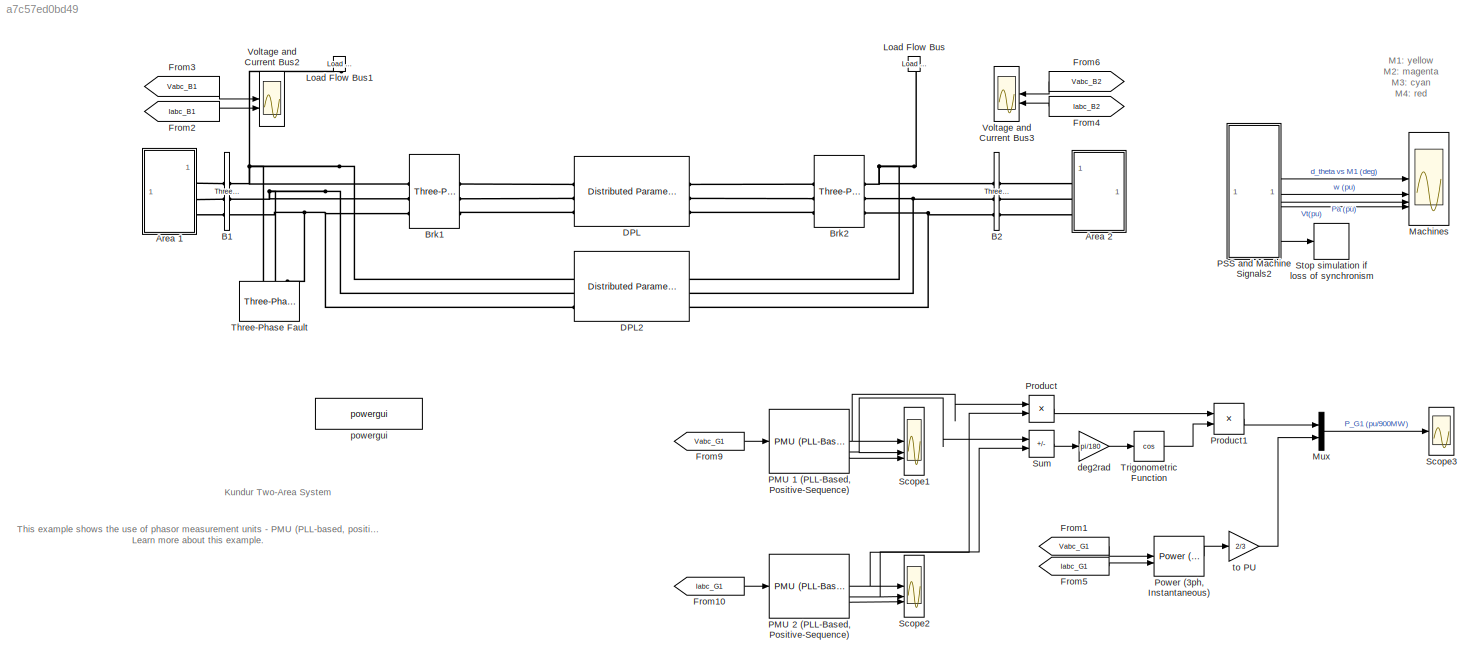
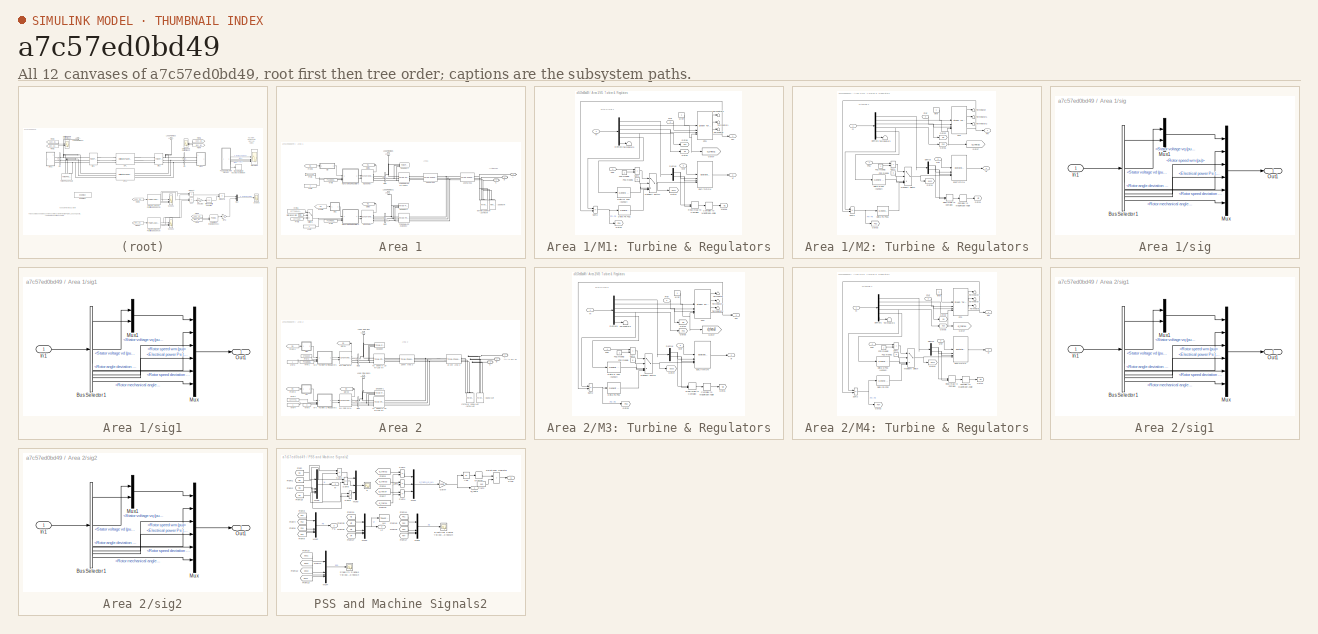
[diagram: thumbnail index - all 12 canvases of the model, root first then tree order]
MODEL slx_a7c57ed0bd49
KIND model
CONFIG AbsTol = auto
CONFIG EnableMultiTasking = off
CONFIG FixedStep = auto
CONFIG MaxStep = 1/60
CONFIG MinStep = auto
CONFIG PreLoadFcn = Ts=50e-6;\nTctrl=2*Ts;\nPSSMODEL=1;\n
CONFIG RelTol = 1e-4
CONFIG SampleTimeConstraint = Unconstrained
CONFIG SolverName = FixedStepDiscrete
CONFIG StartTime = 0.0
CONFIG StopTime = 25
BLOCK [Reference]  Brk2  REF=spsThreePhaseBreakerLib/Three-Phase Breaker
  AttributesFormatString = \n
  LibrarySourceBlock = sps_lib/Power Grid Elements/Three-Phase Breaker
  SourceBlock = spsThreePhaseBreakerLib/Three-Phase Breaker
  SourceType = Three-Phase Breaker
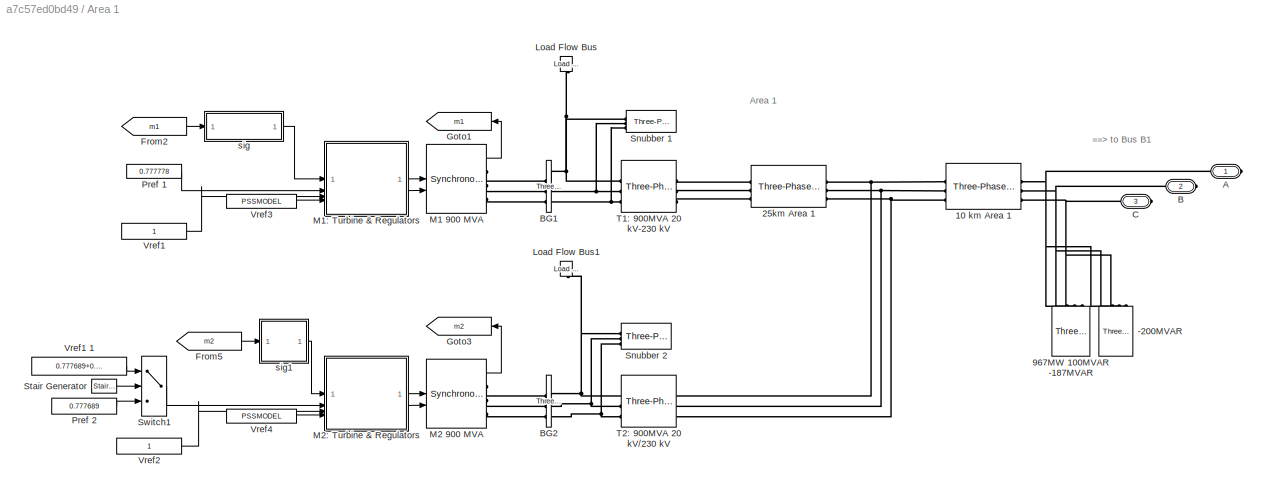
BLOCK [SubSystem] Area 1
BLOCK [PMIOPort] Area 1/ A
  Side = Right
BLOCK [PMIOPort] Area 1/ B
  Port = 2
  Side = Right
BLOCK [PMIOPort] Area 1/ C
  Port = 3
  Side = Right
BLOCK [Reference] Area 1/-200MVAR  REF=spsThreePhaseParallelRLCLoadLib/Three-Phase
Parallel RLC Load
  AttributesFormatString = \n
  LibrarySourceBlock = sps_lib/Passives/Three-Phase\nParallel RLC Load
  NameLocation = right
  SourceBlock = spsThreePhaseParallelRLCLoadLib/Three-Phase\nParallel RLC Load
  SourceType = Three-Phase Parallel RLC Load
BLOCK [Reference] Area 1/10 km Area 1  REF=spsThreePhasePISectionLineLib/Three-Phase
PI Section Line
  AttributesFormatString = \n
  LibrarySourceBlock = sps_lib/Power Grid Elements/Three-Phase\nPI Section Line
  SourceBlock = spsThreePhasePISectionLineLib/Three-Phase\nPI Section Line
  SourceType = Three-Phase PI Section Line
BLOCK [Reference] Area 1/25km Area 1  REF=spsThreePhasePISectionLineLib/Three-Phase
PI Section Line
  AttributesFormatString = \n
  LibrarySourceBlock = sps_lib/Power Grid Elements/Three-Phase\nPI Section Line
  SourceBlock = spsThreePhasePISectionLineLib/Three-Phase\nPI Section Line
  SourceType = Three-Phase PI Section Line
BLOCK [Reference] Area 1/967MW 100MVAR -187MVAR  REF=spsThreePhaseParallelRLCLoadLib/Three-Phase
Parallel RLC Load
  AttributesFormatString = \n
  LibrarySourceBlock = sps_lib/Passives/Three-Phase\nParallel RLC Load
  NameLocation = left
  SourceBlock = spsThreePhaseParallelRLCLoadLib/Three-Phase\nParallel RLC Load
  SourceType = Three-Phase Parallel RLC Load
BLOCK [Reference] Area 1/BG1  REF=spsThreePhaseVIMeasurementLib/Three-Phase
V-I Measurement
  LibrarySourceBlock = sps_lib/Sensors and Measurements/Three-Phase\nV-I Measurement
  SourceBlock = spsThreePhaseVIMeasurementLib/Three-Phase\nV-I Measurement
  SourceType = Three-Phase VI Measurement
BLOCK [Reference] Area 1/BG2  REF=spsThreePhaseVIMeasurementLib/Three-Phase
V-I Measurement
  LibrarySourceBlock = sps_lib/Sensors and Measurements/Three-Phase\nV-I Measurement
  SourceBlock = spsThreePhaseVIMeasurementLib/Three-Phase\nV-I Measurement
  SourceType = Three-Phase VI Measurement
BLOCK [From] Area 1/From2
  CloseFcn = tagdialog Close
  GotoTag = m1
BLOCK [From] Area 1/From5
  CloseFcn = tagdialog Close
  GotoTag = m2
BLOCK [Goto] Area 1/Goto1
  GotoTag = m1
  NameLocation = top
BLOCK [Goto] Area 1/Goto3
  GotoTag = m2
  NameLocation = top
BLOCK [Reference] Area 1/Load Flow Bus  REF=spsLoadFlowBusLib/Load Flow Bus
  AttributesFormatString = %<ID>\n%<Vbase>V\n%<VLF>pu\n%<angleLF>deg.
  LibrarySourceBlock = sps_lib/Utilities/Load Flow Bus
  NameLocation = right
  SourceBlock = spsLoadFlowBusLib/Load Flow Bus
  SourceType = Load Flow Bus
BLOCK [Reference] Area 1/Load Flow Bus1  REF=spsLoadFlowBusLib/Load Flow Bus
  AttributesFormatString = %<ID>\n%<Vbase>V\n%<VLF>pu\n%<angleLF>deg.
  LibrarySourceBlock = sps_lib/Utilities/Load Flow Bus
  NameLocation = right
  SourceBlock = spsLoadFlowBusLib/Load Flow Bus
  SourceType = Load Flow Bus
BLOCK [Reference] Area 1/M1 900 MVA  REF=spsSynchronousMachinepuStandardLib/Synchronous Machine
pu Standard
  AttributesFormatString = \n\n
  LibrarySourceBlock = sps_lib/Electrical Machines/Synchronous Machine\npu Standard
  SourceBlock = spsSynchronousMachinepuStandardLib/Synchronous Machine\npu Standard
  SourceType = Synchronous Machine
BLOCK [SubSystem] Area 1/M1: Turbine & Regulators
BLOCK [ComplexToMagnitudeAngle] Area 1/M1: Turbine & Regulators/Complex to Magnitude-Angle
  Output = Magnitude
BLOCK [Reference] Area 1/M1: Turbine & Regulators/Delta Pa PSS  REF=spsGenericPowerSystemStabilizerLib/Generic
Power System Stabilizer
  LibrarySourceBlock = sps_lib/Electrical Machines/Synchronous Machine Control/Generic\nPower System Stabilizer
  SourceBlock = spsGenericPowerSystemStabilizerLib/Generic\nPower System Stabilizer
  SourceType = Generic Power System Stabilizer
BLOCK [Reference] Area 1/M1: Turbine & Regulators/Delta w PSS (Kundur)  REF=spsGenericPowerSystemStabilizerLib/Generic
Power System Stabilizer
  LibrarySourceBlock = sps_lib/Electrical Machines/Synchronous Machine Control/Generic\nPower System Stabilizer
  SourceBlock = spsGenericPowerSystemStabilizerLib/Generic\nPower System Stabilizer
  SourceType = Generic Power System Stabilizer
BLOCK [Demux] Area 1/M1: Turbine & Regulators/Demux
  DisplayOption = none
  Outputs = 2
BLOCK [Demux] Area 1/M1: Turbine & Regulators/Demux1
  Outputs = [2 1 1 1 1 1]
BLOCK [Reference] Area 1/M1: Turbine & Regulators/EXCITATION  REF=spsExcitationSystemLib/Excitation System
  LibrarySourceBlock = sps_lib/Electrical Machines/Synchronous Machine Control/Excitation System
  SourceBlock = spsExcitationSystemLib/Excitation System
  SourceType = Excitation System
BLOCK [Goto] Area 1/M1: Turbine & Regulators/Goto1
  GotoTag = Vt1
  TagVisibility = global
BLOCK [Goto] Area 1/M1: Turbine & Regulators/Goto2
  GotoTag = w1
  TagVisibility = global
BLOCK [Goto] Area 1/M1: Turbine & Regulators/Goto3
  GotoTag = Pa1
  TagVisibility = global
BLOCK [Goto] Area 1/M1: Turbine & Regulators/Goto4
  GotoTag = pss1
  TagVisibility = global
BLOCK [Goto] Area 1/M1: Turbine & Regulators/Goto6
  GotoTag = Pe1
  TagVisibility = global
BLOCK [Goto] Area 1/M1: Turbine & Regulators/Goto7
  GotoTag = d_theta1
  TagVisibility = global
BLOCK [MultiPortSwitch] Area 1/M1: Turbine & Regulators/Multiport Switch
  Inputs = 4
  SaturateOnIntegerOverflow = off
BLOCK [Inport] Area 1/M1: Turbine & Regulators/PSS
  Port = 4
BLOCK [Constant] Area 1/M1: Turbine & Regulators/PSS model1
  Value = 0
BLOCK [Constant] Area 1/M1: Turbine & Regulators/PSS model2
BLOCK [Outport] Area 1/M1: Turbine & Regulators/Pm
  InitialOutput = 0
  VectorParamsAs1DForOutWhenUnconnected = off
BLOCK [Inport] Area 1/M1: Turbine & Regulators/Pref
  Port = 2
BLOCK [RealImagToComplex] Area 1/M1: Turbine & Regulators/Real-Imag to Complex
BLOCK [Reference] Area 1/M1: Turbine & Regulators/STG  REF=spsSteamTurbineandGovernorLib/Steam Turbine
and Governor
  LibrarySourceBlock = sps_lib/Electrical Machines/Synchronous Machine Control/Steam Turbine\nand Governor
  SourceBlock = spsSteamTurbineandGovernorLib/Steam Turbine\nand Governor
  SourceType = Steam Turbine and Governor
BLOCK [Sum] Area 1/M1: Turbine & Regulators/Sum1
  IconShape = rectangular
  InputSameDT = on
  OutDataTypeStr = Inherit: Same as first input
  SaturateOnIntegerOverflow = on
BLOCK [Sum] Area 1/M1: Turbine & Regulators/Sum2
  IconShape = rectangular
  InputSameDT = on
  Inputs = -+
  OutDataTypeStr = Inherit: Same as first input
  SaturateOnIntegerOverflow = on
BLOCK [Terminator] Area 1/M1: Turbine & Regulators/Terminator
BLOCK [Terminator] Area 1/M1: Turbine & Regulators/Terminator1
BLOCK [Terminator] Area 1/M1: Turbine & Regulators/Terminator2
BLOCK [Terminator] Area 1/M1: Turbine & Regulators/Terminator3
BLOCK [Outport] Area 1/M1: Turbine & Regulators/Vf
  InitialOutput = 0
  Port = 2
  VectorParamsAs1DForOutWhenUnconnected = off
BLOCK [Inport] Area 1/M1: Turbine & Regulators/Vref
  Port = 3
BLOCK [Inport] Area 1/M1: Turbine & Regulators/m
BLOCK [Constant] Area 1/M1: Turbine & Regulators/wref
  NameLocation = top
BLOCK [Reference] Area 1/M2 900 MVA  REF=spsSynchronousMachinepuStandardLib/Synchronous Machine
pu Standard
  AttributesFormatString = \n\n
  LibrarySourceBlock = sps_lib/Electrical Machines/Synchronous Machine\npu Standard
  SourceBlock = spsSynchronousMachinepuStandardLib/Synchronous Machine\npu Standard
  SourceType = Synchronous Machine
BLOCK [SubSystem] Area 1/M2: Turbine & Regulators
BLOCK [ComplexToMagnitudeAngle] Area 1/M2: Turbine & Regulators/Complex to Magnitude-Angle
  Output = Magnitude
BLOCK [Reference] Area 1/M2: Turbine & Regulators/Delta Pa PSS1  REF=spsGenericPowerSystemStabilizerLib/Generic
Power System Stabilizer
  LibrarySourceBlock = sps_lib/Electrical Machines/Synchronous Machine Control/Generic\nPower System Stabilizer
  SourceBlock = spsGenericPowerSystemStabilizerLib/Generic\nPower System Stabilizer
  SourceType = Generic Power System Stabilizer
BLOCK [Reference] Area 1/M2: Turbine & Regulators/Delta w PSS (Kundur)  REF=spsGenericPowerSystemStabilizerLib/Generic
Power System Stabilizer
  LibrarySourceBlock = sps_lib/Electrical Machines/Synchronous Machine Control/Generic\nPower System Stabilizer
  SourceBlock = spsGenericPowerSystemStabilizerLib/Generic\nPower System Stabilizer
  SourceType = Generic Power System Stabilizer
BLOCK [Demux] Area 1/M2: Turbine & Regulators/Demux
  DisplayOption = none
  Outputs = 2
BLOCK [Demux] Area 1/M2: Turbine & Regulators/Demux1
  Outputs = [2 1 1 1 1 1]
BLOCK [Reference] Area 1/M2: Turbine & Regulators/EXCITATION  REF=spsExcitationSystemLib/Excitation System
  LibrarySourceBlock = sps_lib/Electrical Machines/Synchronous Machine Control/Excitation System
  SourceBlock = spsExcitationSystemLib/Excitation System
  SourceType = Excitation System
BLOCK [Goto] Area 1/M2: Turbine & Regulators/Goto1
  GotoTag = Vt2
  TagVisibility = global
BLOCK [Goto] Area 1/M2: Turbine & Regulators/Goto2
  GotoTag = w2
  TagVisibility = global
BLOCK [Goto] Area 1/M2: Turbine & Regulators/Goto3
  GotoTag = Pa2
  TagVisibility = global
BLOCK [Goto] Area 1/M2: Turbine & Regulators/Goto4
  GotoTag = pss2
  TagVisibility = global
BLOCK [Goto] Area 1/M2: Turbine & Regulators/Goto6
  GotoTag = Pe2
  TagVisibility = global
BLOCK [Goto] Area 1/M2: Turbine & Regulators/Goto7
  GotoTag = d_theta2
  TagVisibility = global
BLOCK [MultiPortSwitch] Area 1/M2: Turbine & Regulators/Multiport Switch
  Inputs = 4
  SaturateOnIntegerOverflow = off
BLOCK [Inport] Area 1/M2: Turbine & Regulators/PSS
  Port = 4
BLOCK [Constant] Area 1/M2: Turbine & Regulators/PSS model1
  Value = 0
BLOCK [Constant] Area 1/M2: Turbine & Regulators/PSS model2
BLOCK [Outport] Area 1/M2: Turbine & Regulators/Pm
  InitialOutput = 0
  VectorParamsAs1DForOutWhenUnconnected = off
BLOCK [Inport] Area 1/M2: Turbine & Regulators/Pref
  Port = 2
BLOCK [RealImagToComplex] Area 1/M2: Turbine & Regulators/Real-Imag to Complex
BLOCK [Reference] Area 1/M2: Turbine & Regulators/STG  REF=spsSteamTurbineandGovernorLib/Steam Turbine
and Governor
  LibrarySourceBlock = sps_lib/Electrical Machines/Synchronous Machine Control/Steam Turbine\nand Governor
  SourceBlock = spsSteamTurbineandGovernorLib/Steam Turbine\nand Governor
  SourceType = Steam Turbine and Governor
BLOCK [Sum] Area 1/M2: Turbine & Regulators/Sum1
  IconShape = rectangular
  InputSameDT = on
  OutDataTypeStr = Inherit: Same as first input
  SaturateOnIntegerOverflow = on
BLOCK [Sum] Area 1/M2: Turbine & Regulators/Sum2
  IconShape = rectangular
  InputSameDT = on
  Inputs = -+
  OutDataTypeStr = Inherit: Same as first input
  SaturateOnIntegerOverflow = on
BLOCK [Terminator] Area 1/M2: Turbine & Regulators/Terminator
BLOCK [Terminator] Area 1/M2: Turbine & Regulators/Terminator1
BLOCK [Terminator] Area 1/M2: Turbine & Regulators/Terminator2
BLOCK [Terminator] Area 1/M2: Turbine & Regulators/Terminator3
BLOCK [Outport] Area 1/M2: Turbine & Regulators/Vf
  InitialOutput = 0
  Port = 2
  VectorParamsAs1DForOutWhenUnconnected = off
BLOCK [Inport] Area 1/M2: Turbine & Regulators/Vref
  Port = 3
BLOCK [Inport] Area 1/M2: Turbine & Regulators/m
BLOCK [Constant] Area 1/M2: Turbine & Regulators/wref
  NameLocation = top
BLOCK [Constant] Area 1/Pref 1
  Value = 0.777778
BLOCK [Constant] Area 1/Pref 2
  Value = 0.777689
BLOCK [Reference] Area 1/Snubber 1  REF=spsThreePhaseSeriesRLCLoadLib/Three-Phase
Series RLC Load
  AttributesFormatString = \n
  LibrarySourceBlock = sps_lib/Passives/Three-Phase\nSeries RLC Load
  SourceBlock = spsThreePhaseSeriesRLCLoadLib/Three-Phase\nSeries RLC Load
  SourceType = Three-Phase Series RLC Load
BLOCK [Reference] Area 1/Snubber 2  REF=spsThreePhaseSeriesRLCLoadLib/Three-Phase
Series RLC Load
  AttributesFormatString = \n
  LibrarySourceBlock = sps_lib/Passives/Three-Phase\nSeries RLC Load
  SourceBlock = spsThreePhaseSeriesRLCLoadLib/Three-Phase\nSeries RLC Load
  SourceType = Three-Phase Series RLC Load
BLOCK [Reference] Area 1/Stair Generator  REF=spsStairGeneratorLib/Stair
Generator
  LibrarySourceBlock = sps_lib/Sources/Signal Generator Sources/Stair\nGenerator
  NameLocation = top
  SourceBlock = spsStairGeneratorLib/Stair\nGenerator
  SourceType = Stair Generator
BLOCK [Switch] Area 1/Switch1
  SaturateOnIntegerOverflow = off
  Threshold = 1
BLOCK [Reference] Area 1/T1: 900MVA 20 kV-230 kV  REF=spsThreePhaseTransformerTwoWindingsLib/Three-Phase
Transformer
(Two Windings)
  AttributesFormatString = \n
  LibrarySourceBlock = sps_lib/Power Grid Elements/Three-Phase\nTransformer\n(Two Windings)
  SourceBlock = spsThreePhaseTransformerTwoWindingsLib/Three-Phase\nTransformer\n(Two Windings)
  SourceType = Three-Phase Transformer (Two Windings)
BLOCK [Reference] Area 1/T2: 900MVA 20 kV//230 kV  REF=spsThreePhaseTransformerTwoWindingsLib/Three-Phase
Transformer
(Two Windings)
  AttributesFormatString = \n
  LibrarySourceBlock = sps_lib/Power Grid Elements/Three-Phase\nTransformer\n(Two Windings)
  SourceBlock = spsThreePhaseTransformerTwoWindingsLib/Three-Phase\nTransformer\n(Two Windings)
  SourceType = Three-Phase Transformer (Two Windings)
BLOCK [Constant] Area 1/Vref1
BLOCK [Constant] Area 1/Vref1 1
  Value = 0.777689+0.05
BLOCK [Constant] Area 1/Vref2
BLOCK [Constant] Area 1/Vref3
  Value = PSSMODEL
BLOCK [Constant] Area 1/Vref4
  Value = PSSMODEL
BLOCK [SubSystem] Area 1/sig
  NameLocation = top
BLOCK [BusSelector] Area 1/sig/Bus Selector1
  OutputSignals = dq0 components.Stator voltage  vq (pu),dq0 components.Stator voltage  vd (pu),Mechanical.Rotor angle deviation  d_theta (rad),Mechanical.Rotor speed  wm  (pu),Mechanical.Electrical power  Pe (pu),Mechanical.Rotor speed deviation  dw (pu),Mechanical.Rotor mechanical angle  theta (deg)  <repeated x4 — deduplicated; at blocks: Bus Selector1>
BLOCK [Inport] Area 1/sig/In1
BLOCK [Mux] Area 1/sig/Mux
  DisplayOption = bar
  Inputs = 6
BLOCK [Mux] Area 1/sig/Mux1
  DisplayOption = bar
  Inputs = 2
BLOCK [Outport] Area 1/sig/Out1
  VectorParamsAs1DForOutWhenUnconnected = off
BLOCK [SubSystem] Area 1/sig1
  NameLocation = top
BLOCK [BusSelector] Area 1/sig1/Bus Selector1
BLOCK [Inport] Area 1/sig1/In1
BLOCK [Mux] Area 1/sig1/Mux
  DisplayOption = bar
  Inputs = 6
BLOCK [Mux] Area 1/sig1/Mux1
  DisplayOption = bar
  Inputs = 2
BLOCK [Outport] Area 1/sig1/Out1
  VectorParamsAs1DForOutWhenUnconnected = off
BLOCK [SubSystem] Area 2
BLOCK [Reference] Area 2/-350MVAR  REF=spsThreePhaseParallelRLCLoadLib/Three-Phase
Parallel RLC Load
  AttributesFormatString = \n
  LibrarySourceBlock = sps_lib/Passives/Three-Phase\nParallel RLC Load
  NameLocation = right
  SourceBlock = spsThreePhaseParallelRLCLoadLib/Three-Phase\nParallel RLC Load
  SourceType = Three-Phase Parallel RLC Load
BLOCK [Reference] Area 2/10 km Area 2  REF=spsThreePhasePISectionLineLib/Three-Phase
PI Section Line
  AttributesFormatString = \n
  LibrarySourceBlock = sps_lib/Power Grid Elements/Three-Phase\nPI Section Line
  SourceBlock = spsThreePhasePISectionLineLib/Three-Phase\nPI Section Line
  SourceType = Three-Phase PI Section Line
BLOCK [Reference] Area 2/1767MW 100MVAR -187MVAR  REF=spsThreePhaseParallelRLCLoadLib/Three-Phase
Parallel RLC Load
  AttributesFormatString = \n
  LibrarySourceBlock = sps_lib/Passives/Three-Phase\nParallel RLC Load
  NameLocation = left
  SourceBlock = spsThreePhaseParallelRLCLoadLib/Three-Phase\nParallel RLC Load
  SourceType = Three-Phase Parallel RLC Load
BLOCK [Reference] Area 2/25km Area 2  REF=spsThreePhasePISectionLineLib/Three-Phase
PI Section Line
  AttributesFormatString = \n
  LibrarySourceBlock = sps_lib/Power Grid Elements/Three-Phase\nPI Section Line
  SourceBlock = spsThreePhasePISectionLineLib/Three-Phase\nPI Section Line
  SourceType = Three-Phase PI Section Line
BLOCK [PMIOPort] Area 2/A
  Side = Left
BLOCK [PMIOPort] Area 2/B
  Port = 2
  Side = Left
BLOCK [Reference] Area 2/BG3  REF=spsThreePhaseVIMeasurementLib/Three-Phase
V-I Measurement
  LibrarySourceBlock = sps_lib/Sensors and Measurements/Three-Phase\nV-I Measurement
  SourceBlock = spsThreePhaseVIMeasurementLib/Three-Phase\nV-I Measurement
  SourceType = Three-Phase VI Measurement
BLOCK [Reference] Area 2/BG4  REF=spsThreePhaseVIMeasurementLib/Three-Phase
V-I Measurement
  LibrarySourceBlock = sps_lib/Sensors and Measurements/Three-Phase\nV-I Measurement
  SourceBlock = spsThreePhaseVIMeasurementLib/Three-Phase\nV-I Measurement
  SourceType = Three-Phase VI Measurement
BLOCK [PMIOPort] Area 2/C
  Port = 3
  Side = Left
BLOCK [From] Area 2/From3
  CloseFcn = tagdialog Close
  GotoTag = m4
BLOCK [From] Area 2/From4
  CloseFcn = tagdialog Close
  GotoTag = m3
BLOCK [Goto] Area 2/Goto1
  GotoTag = m3
  NameLocation = top
BLOCK [Goto] Area 2/Goto3
  GotoTag = m4
  NameLocation = top
BLOCK [Reference] Area 2/Load Flow Bus  REF=spsLoadFlowBusLib/Load Flow Bus
  AttributesFormatString = %<ID>\n%<Vbase>V\n%<VLF>pu\n%<angleLF>deg.
  LibrarySourceBlock = sps_lib/Utilities/Load Flow Bus
  NameLocation = right
  SourceBlock = spsLoadFlowBusLib/Load Flow Bus
  SourceType = Load Flow Bus
BLOCK [Reference] Area 2/Load Flow Bus1  REF=spsLoadFlowBusLib/Load Flow Bus
  AttributesFormatString = %<ID>\n%<Vbase>V\n%<VLF>pu\n%<angleLF>deg.
  LibrarySourceBlock = sps_lib/Utilities/Load Flow Bus
  NameLocation = right
  SourceBlock = spsLoadFlowBusLib/Load Flow Bus
  SourceType = Load Flow Bus
BLOCK [Reference] Area 2/M3 900 MVA  REF=spsSynchronousMachinepuStandardLib/Synchronous Machine
pu Standard
  AttributesFormatString = \n\n
  LibrarySourceBlock = sps_lib/Electrical Machines/Synchronous Machine\npu Standard
  SourceBlock = spsSynchronousMachinepuStandardLib/Synchronous Machine\npu Standard
  SourceType = Synchronous Machine
BLOCK [SubSystem] Area 2/M3: Turbine & Regulators
BLOCK [ComplexToMagnitudeAngle] Area 2/M3: Turbine & Regulators/Complex to Magnitude-Angle
  Output = Magnitude
BLOCK [Reference] Area 2/M3: Turbine & Regulators/Delta Pa PSS  REF=spsGenericPowerSystemStabilizerLib/Generic
Power System Stabilizer
  LibrarySourceBlock = sps_lib/Electrical Machines/Synchronous Machine Control/Generic\nPower System Stabilizer
  SourceBlock = spsGenericPowerSystemStabilizerLib/Generic\nPower System Stabilizer
  SourceType = Generic Power System Stabilizer
BLOCK [Reference] Area 2/M3: Turbine & Regulators/Delta w PSS (Kundur)  REF=spsGenericPowerSystemStabilizerLib/Generic
Power System Stabilizer
  LibrarySourceBlock = sps_lib/Electrical Machines/Synchronous Machine Control/Generic\nPower System Stabilizer
  SourceBlock = spsGenericPowerSystemStabilizerLib/Generic\nPower System Stabilizer
  SourceType = Generic Power System Stabilizer
BLOCK [Demux] Area 2/M3: Turbine & Regulators/Demux
  DisplayOption = none
  Outputs = 2
BLOCK [Demux] Area 2/M3: Turbine & Regulators/Demux1
  Outputs = [2 1 1 1 1 1]
BLOCK [Reference] Area 2/M3: Turbine & Regulators/EXCITATION  REF=spsExcitationSystemLib/Excitation System
  LibrarySourceBlock = sps_lib/Electrical Machines/Synchronous Machine Control/Excitation System
  SourceBlock = spsExcitationSystemLib/Excitation System
  SourceType = Excitation System
BLOCK [Goto] Area 2/M3: Turbine & Regulators/Goto1
  GotoTag = Vt3
  TagVisibility = global
BLOCK [Goto] Area 2/M3: Turbine & Regulators/Goto2
  GotoTag = w3
  TagVisibility = global
BLOCK [Goto] Area 2/M3: Turbine & Regulators/Goto3
  GotoTag = Pa3
  TagVisibility = global
BLOCK [Goto] Area 2/M3: Turbine & Regulators/Goto4
  GotoTag = pss3
  TagVisibility = global
BLOCK [Goto] Area 2/M3: Turbine & Regulators/Goto6
  GotoTag = Pe3
  TagVisibility = global
BLOCK [Goto] Area 2/M3: Turbine & Regulators/Goto7
  GotoTag = d_theta3
  TagVisibility = global
BLOCK [MultiPortSwitch] Area 2/M3: Turbine & Regulators/Multiport Switch
  Inputs = 4
  SaturateOnIntegerOverflow = off
BLOCK [Inport] Area 2/M3: Turbine & Regulators/PSS
  Port = 4
BLOCK [Constant] Area 2/M3: Turbine & Regulators/PSS model1
  Value = 0
BLOCK [Constant] Area 2/M3: Turbine & Regulators/PSS model2
BLOCK [Outport] Area 2/M3: Turbine & Regulators/Pm
  InitialOutput = 0
  VectorParamsAs1DForOutWhenUnconnected = off
BLOCK [Inport] Area 2/M3: Turbine & Regulators/Pref
  Port = 2
BLOCK [RealImagToComplex] Area 2/M3: Turbine & Regulators/Real-Imag to Complex
BLOCK [Reference] Area 2/M3: Turbine & Regulators/STG  REF=spsSteamTurbineandGovernorLib/Steam Turbine
and Governor
  LibrarySourceBlock = sps_lib/Electrical Machines/Synchronous Machine Control/Steam Turbine\nand Governor
  SourceBlock = spsSteamTurbineandGovernorLib/Steam Turbine\nand Governor
  SourceType = Steam Turbine and Governor
BLOCK [Sum] Area 2/M3: Turbine & Regulators/Sum1
  IconShape = rectangular
  InputSameDT = on
  OutDataTypeStr = Inherit: Same as first input
  SaturateOnIntegerOverflow = on
BLOCK [Sum] Area 2/M3: Turbine & Regulators/Sum2
  IconShape = rectangular
  InputSameDT = on
  Inputs = -+
  OutDataTypeStr = Inherit: Same as first input
  SaturateOnIntegerOverflow = on
BLOCK [Terminator] Area 2/M3: Turbine & Regulators/Terminator
BLOCK [Terminator] Area 2/M3: Turbine & Regulators/Terminator1
BLOCK [Terminator] Area 2/M3: Turbine & Regulators/Terminator2
BLOCK [Terminator] Area 2/M3: Turbine & Regulators/Terminator3
BLOCK [Outport] Area 2/M3: Turbine & Regulators/Vf
  InitialOutput = 0
  Port = 2
  VectorParamsAs1DForOutWhenUnconnected = off
BLOCK [Inport] Area 2/M3: Turbine & Regulators/Vref
  Port = 3
BLOCK [Inport] Area 2/M3: Turbine & Regulators/m
BLOCK [Constant] Area 2/M3: Turbine & Regulators/wref
  NameLocation = top
BLOCK [Reference] Area 2/M4 900 MVA  REF=spsSynchronousMachinepuStandardLib/Synchronous Machine
pu Standard
  AttributesFormatString = \n\n
  LibrarySourceBlock = sps_lib/Electrical Machines/Synchronous Machine\npu Standard
  SourceBlock = spsSynchronousMachinepuStandardLib/Synchronous Machine\npu Standard
  SourceType = Synchronous Machine
BLOCK [SubSystem] Area 2/M4: Turbine & Regulators
BLOCK [ComplexToMagnitudeAngle] Area 2/M4: Turbine & Regulators/Complex to Magnitude-Angle
  Output = Magnitude
BLOCK [Reference] Area 2/M4: Turbine & Regulators/Delta Pa PSS   REF=spsGenericPowerSystemStabilizerLib/Generic
Power System Stabilizer
  LibrarySourceBlock = sps_lib/Electrical Machines/Synchronous Machine Control/Generic\nPower System Stabilizer
  SourceBlock = spsGenericPowerSystemStabilizerLib/Generic\nPower System Stabilizer
  SourceType = Generic Power System Stabilizer
BLOCK [Reference] Area 2/M4: Turbine & Regulators/Delta w PSS (Kundur)  REF=spsGenericPowerSystemStabilizerLib/Generic
Power System Stabilizer
  LibrarySourceBlock = sps_lib/Electrical Machines/Synchronous Machine Control/Generic\nPower System Stabilizer
  SourceBlock = spsGenericPowerSystemStabilizerLib/Generic\nPower System Stabilizer
  SourceType = Generic Power System Stabilizer
BLOCK [Demux] Area 2/M4: Turbine & Regulators/Demux
  DisplayOption = none
  Outputs = 2
BLOCK [Demux] Area 2/M4: Turbine & Regulators/Demux1
  Outputs = [2 1 1 1 1 1]
BLOCK [Reference] Area 2/M4: Turbine & Regulators/EXCITATION  REF=spsExcitationSystemLib/Excitation System
  LibrarySourceBlock = sps_lib/Electrical Machines/Synchronous Machine Control/Excitation System
  SourceBlock = spsExcitationSystemLib/Excitation System
  SourceType = Excitation System
BLOCK [Goto] Area 2/M4: Turbine & Regulators/Goto1
  GotoTag = Vt4
  TagVisibility = global
BLOCK [Goto] Area 2/M4: Turbine & Regulators/Goto2
  GotoTag = w4
  TagVisibility = global
BLOCK [Goto] Area 2/M4: Turbine & Regulators/Goto3
  GotoTag = Pa4
  TagVisibility = global
BLOCK [Goto] Area 2/M4: Turbine & Regulators/Goto4
  GotoTag = pss4
  TagVisibility = global
BLOCK [Goto] Area 2/M4: Turbine & Regulators/Goto6
  GotoTag = Pe4
  TagVisibility = global
BLOCK [Goto] Area 2/M4: Turbine & Regulators/Goto7
  GotoTag = d_theta4
  TagVisibility = global
BLOCK [MultiPortSwitch] Area 2/M4: Turbine & Regulators/Multiport Switch
  Inputs = 4
  SaturateOnIntegerOverflow = off
BLOCK [Inport] Area 2/M4: Turbine & Regulators/PSS
  Port = 4
BLOCK [Constant] Area 2/M4: Turbine & Regulators/PSS model1
  Value = 0
BLOCK [Constant] Area 2/M4: Turbine & Regulators/PSS model2
BLOCK [Outport] Area 2/M4: Turbine & Regulators/Pm
  InitialOutput = 0
  VectorParamsAs1DForOutWhenUnconnected = off
BLOCK [Inport] Area 2/M4: Turbine & Regulators/Pref
  Port = 2
BLOCK [RealImagToComplex] Area 2/M4: Turbine & Regulators/Real-Imag to Complex
BLOCK [Reference] Area 2/M4: Turbine & Regulators/STG  REF=spsSteamTurbineandGovernorLib/Steam Turbine
and Governor
  LibrarySourceBlock = sps_lib/Electrical Machines/Synchronous Machine Control/Steam Turbine\nand Governor
  SourceBlock = spsSteamTurbineandGovernorLib/Steam Turbine\nand Governor
  SourceType = Steam Turbine and Governor
BLOCK [Sum] Area 2/M4: Turbine & Regulators/Sum1
  IconShape = rectangular
  InputSameDT = on
  OutDataTypeStr = Inherit: Same as first input
  SaturateOnIntegerOverflow = on
BLOCK [Sum] Area 2/M4: Turbine & Regulators/Sum2
  IconShape = rectangular
  InputSameDT = on
  Inputs = -+
  OutDataTypeStr = Inherit: Same as first input
  SaturateOnIntegerOverflow = on
BLOCK [Terminator] Area 2/M4: Turbine & Regulators/Terminator
BLOCK [Terminator] Area 2/M4: Turbine & Regulators/Terminator1
BLOCK [Terminator] Area 2/M4: Turbine & Regulators/Terminator2
BLOCK [Terminator] Area 2/M4: Turbine & Regulators/Terminator3
BLOCK [Outport] Area 2/M4: Turbine & Regulators/Vf
  InitialOutput = 0
  Port = 2
  VectorParamsAs1DForOutWhenUnconnected = off
BLOCK [Inport] Area 2/M4: Turbine & Regulators/Vref
  Port = 3
BLOCK [Inport] Area 2/M4: Turbine & Regulators/m
BLOCK [Constant] Area 2/M4: Turbine & Regulators/wref
  NameLocation = top
BLOCK [Constant] Area 2/Pref3
  NameLocation = top
  Value = 0.798889
BLOCK [Constant] Area 2/Pref4
  NameLocation = top
  Value = 0.777778
BLOCK [Reference] Area 2/Snubber  REF=spsThreePhaseSeriesRLCLoadLib/Three-Phase
Series RLC Load
  AttributesFormatString = \n
  LibrarySourceBlock = sps_lib/Passives/Three-Phase\nSeries RLC Load
  SourceBlock = spsThreePhaseSeriesRLCLoadLib/Three-Phase\nSeries RLC Load
  SourceType = Three-Phase Series RLC Load
BLOCK [Reference] Area 2/Snubber1  REF=spsThreePhaseSeriesRLCLoadLib/Three-Phase
Series RLC Load
  AttributesFormatString = \n
  LibrarySourceBlock = sps_lib/Passives/Three-Phase\nSeries RLC Load
  SourceBlock = spsThreePhaseSeriesRLCLoadLib/Three-Phase\nSeries RLC Load
  SourceType = Three-Phase Series RLC Load
BLOCK [Reference] Area 2/T3: 900MVA 20 kV-230 kV  REF=spsThreePhaseTransformerTwoWindingsLib/Three-Phase
Transformer
(Two Windings)
  AttributesFormatString = \n
  LibrarySourceBlock = sps_lib/Power Grid Elements/Three-Phase\nTransformer\n(Two Windings)
  SourceBlock = spsThreePhaseTransformerTwoWindingsLib/Three-Phase\nTransformer\n(Two Windings)
  SourceType = Three-Phase Transformer (Two Windings)
BLOCK [Reference] Area 2/T4: 900MVA 20 kV//230 kV  REF=spsThreePhaseTransformerTwoWindingsLib/Three-Phase
Transformer
(Two Windings)
  AttributesFormatString = \n
  LibrarySourceBlock = sps_lib/Power Grid Elements/Three-Phase\nTransformer\n(Two Windings)
  SourceBlock = spsThreePhaseTransformerTwoWindingsLib/Three-Phase\nTransformer\n(Two Windings)
  SourceType = Three-Phase Transformer (Two Windings)
BLOCK [Constant] Area 2/Vref1
  Value = PSSMODEL
BLOCK [Constant] Area 2/Vref3
BLOCK [Constant] Area 2/Vref4
BLOCK [Constant] Area 2/Vref5
  Value = 0
BLOCK [SubSystem] Area 2/sig1
  NameLocation = top
BLOCK [BusSelector] Area 2/sig1/Bus Selector1
BLOCK [Inport] Area 2/sig1/In1
BLOCK [Mux] Area 2/sig1/Mux
  DisplayOption = bar
  Inputs = 6
BLOCK [Mux] Area 2/sig1/Mux1
  DisplayOption = bar
  Inputs = 2
BLOCK [Outport] Area 2/sig1/Out1
  VectorParamsAs1DForOutWhenUnconnected = off
BLOCK [SubSystem] Area 2/sig2
  NameLocation = top
BLOCK [BusSelector] Area 2/sig2/Bus Selector1
BLOCK [Inport] Area 2/sig2/In1
BLOCK [Mux] Area 2/sig2/Mux
  DisplayOption = bar
  Inputs = 6
BLOCK [Mux] Area 2/sig2/Mux1
  DisplayOption = bar
  Inputs = 2
BLOCK [Outport] Area 2/sig2/Out1
  VectorParamsAs1DForOutWhenUnconnected = off
BLOCK [Reference] B1  REF=spsThreePhaseVIMeasurementLib/Three-Phase
V-I Measurement
  LibrarySourceBlock = sps_lib/Sensors and Measurements/Three-Phase\nV-I Measurement
  SourceBlock = spsThreePhaseVIMeasurementLib/Three-Phase\nV-I Measurement
  SourceType = Three-Phase VI Measurement
BLOCK [Reference] B2  REF=spsThreePhaseVIMeasurementLib/Three-Phase
V-I Measurement
  LibrarySourceBlock = sps_lib/Sensors and Measurements/Three-Phase\nV-I Measurement
  SourceBlock = spsThreePhaseVIMeasurementLib/Three-Phase\nV-I Measurement
  SourceType = Three-Phase VI Measurement
BLOCK [Reference] Brk1  REF=spsThreePhaseBreakerLib/Three-Phase Breaker
  AttributesFormatString = \n
  LibrarySourceBlock = sps_lib/Power Grid Elements/Three-Phase Breaker
  SourceBlock = spsThreePhaseBreakerLib/Three-Phase Breaker
  SourceType = Three-Phase Breaker
BLOCK [Reference] DPL  REF=spsDistributedParametersLineLib/Distributed Parameters Line
  LibrarySourceBlock = sps_lib/Power Grid Elements/Distributed Parameters Line
  SourceBlock = spsDistributedParametersLineLib/Distributed Parameters Line
  SourceType = Distributed Parameters Line
BLOCK [Reference] DPL2  REF=spsDistributedParametersLineLib/Distributed Parameters Line
  LibrarySourceBlock = sps_lib/Power Grid Elements/Distributed Parameters Line
  SourceBlock = spsDistributedParametersLineLib/Distributed Parameters Line
  SourceType = Distributed Parameters Line
BLOCK [From] From1
  CloseFcn = tagdialog Close
  GotoTag = Vabc_G1
  TagVisibility = global
BLOCK [From] From10
  CloseFcn = tagdialog Close
  GotoTag = Iabc_G1
  TagVisibility = global
BLOCK [From] From2
  CloseFcn = tagdialog Close
  GotoTag = Iabc_B1
  TagVisibility = global
BLOCK [From] From3
  CloseFcn = tagdialog Close
  GotoTag = Vabc_B1
  TagVisibility = global
BLOCK [From] From4
  CloseFcn = tagdialog Close
  GotoTag = Iabc_B2
  NameLocation = top
  TagVisibility = global
BLOCK [From] From5
  CloseFcn = tagdialog Close
  GotoTag = Iabc_G1
  TagVisibility = global
BLOCK [From] From6
  CloseFcn = tagdialog Close
  GotoTag = Vabc_B2
  NameLocation = top
  TagVisibility = global
BLOCK [From] From9
  CloseFcn = tagdialog Close
  GotoTag = Vabc_G1
  TagVisibility = global
BLOCK [Reference] Load Flow Bus  REF=spsLoadFlowBusLib/Load Flow Bus
  AttributesFormatString = %<ID>\n%<Vbase>V\n%<VLF>pu\n%<angleLF>deg.
  LibrarySourceBlock = sps_lib/Utilities/Load Flow Bus
  NameLocation = right
  SourceBlock = spsLoadFlowBusLib/Load Flow Bus
  SourceType = Load Flow Bus
BLOCK [Reference] Load Flow Bus1  REF=spsLoadFlowBusLib/Load Flow Bus
  AttributesFormatString = %<ID>\n%<Vbase>V\n%<VLF>pu\n%<angleLF>deg.
  LibrarySourceBlock = sps_lib/Utilities/Load Flow Bus
  NameLocation = right
  SourceBlock = spsLoadFlowBusLib/Load Flow Bus
  SourceType = Load Flow Bus
BLOCK [Scope] Machines
  Floating = off
  NumInputPorts = 4
  ScopeSpecificationString = Simulink.scopes.TimeScopeBlockCfg('CurrentConfiguration', extmgr.ConfigurationSet(extmgr.Configuration('Core','General UI',true,'FigureColor',[0 0 0]),extmgr.Configuration('Core','Source UI',true),extmgr.Configuration('Sources','WiredSimulink',true,'DataLogging',true,'DataLoggingVariableName','mach3','DataLoggingSaveFormat','StructureWithTime','DataLoggingDecimation','1','DataLoggingDecimateData',...<+6286ch>
BLOCK [Mux] Mux
  DisplayOption = bar
  Inputs = 2
BLOCK [Reference] PMU 1 (PLL-Based, Positive-Sequence)  REF=spsPMUPLLBasedPositiveSequenceLib/PMU
(PLL-Based,
Positive-Sequence)
  LibrarySourceBlock = sps_lib/Sensors and Measurements/PMU\n(PLL-Based,\nPositive-Sequence)
  SourceBlock = spsPMUPLLBasedPositiveSequenceLib/PMU\n(PLL-Based,\nPositive-Sequence)
  SourceType = PMU (PLL-Based, Positive-Sequence)
BLOCK [Reference] PMU 2 (PLL-Based, Positive-Sequence)  REF=spsPMUPLLBasedPositiveSequenceLib/PMU
(PLL-Based,
Positive-Sequence)
  LibrarySourceBlock = sps_lib/Sensors and Measurements/PMU\n(PLL-Based,\nPositive-Sequence)
  SourceBlock = spsPMUPLLBasedPositiveSequenceLib/PMU\n(PLL-Based,\nPositive-Sequence)
  SourceType = PMU (PLL-Based, Positive-Sequence)
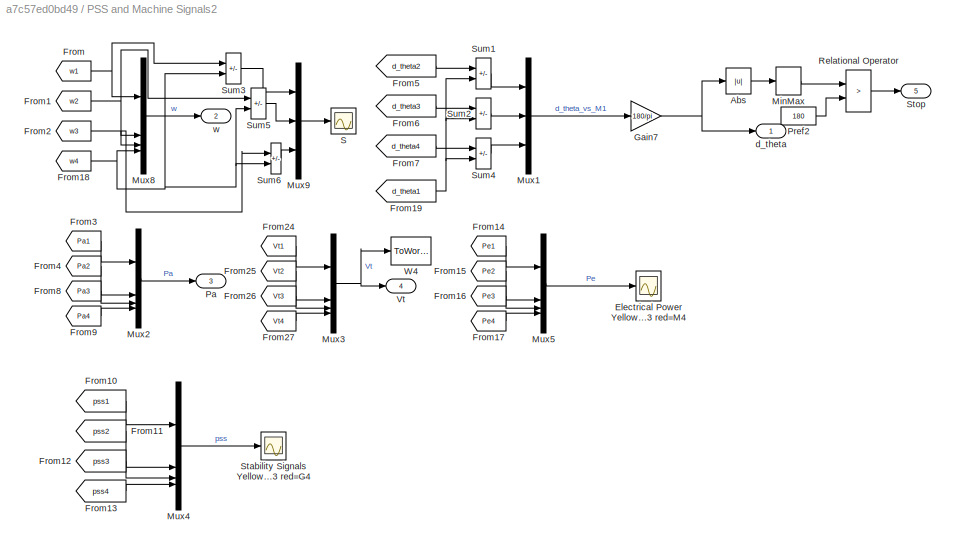
BLOCK [SubSystem] PSS and Machine Signals2
  NameLocation = top
BLOCK [Abs] PSS and Machine Signals2/Abs
BLOCK [Scope] PSS and Machine Signals2/Electrical Power Yellow=M1 mag=M2 cyan=M3 red=M4 
  Floating = off
  NumInputPorts = 1
  ScopeSpecificationString = C++SS(StrPVP('Location','[205, 118, 911, 491]'),StrPVP('Open','off'),MxPVP('AxesTitles',54,'struct(''axes1'',''%<SignalLabel>'')'),MxPVP('ScopeGraphics',57,'struct(''FigureColor'',''[0.5 0.5 0.5]'',''AxesColor'',''[0 0 0]'',''AxesTickColor'',''[1 1 1]'',''LineColors'',''[1 1 0;1 0 1;0 1 1;1 0 0;0 1 0;0 0 1]'',''LineStyles'',''-|-|-|-|-|-'',''LineWidths'',''[0.5 0.5 0.5 0.5 0.5 0.5]'',''MarkerStyle...<+279ch>
BLOCK [From] PSS and Machine Signals2/From
  CloseFcn = tagdialog Close
  GotoTag = w1
  TagVisibility = global
BLOCK [From] PSS and Machine Signals2/From1
  CloseFcn = tagdialog Close
  GotoTag = w2
  TagVisibility = global
BLOCK [From] PSS and Machine Signals2/From10
  CloseFcn = tagdialog Close
  GotoTag = pss1
  TagVisibility = global
BLOCK [From] PSS and Machine Signals2/From11
  CloseFcn = tagdialog Close
  GotoTag = pss2
  TagVisibility = global
BLOCK [From] PSS and Machine Signals2/From12
  CloseFcn = tagdialog Close
  GotoTag = pss3
  TagVisibility = global
BLOCK [From] PSS and Machine Signals2/From13
  CloseFcn = tagdialog Close
  GotoTag = pss4
  TagVisibility = global
BLOCK [From] PSS and Machine Signals2/From14
  CloseFcn = tagdialog Close
  GotoTag = Pe1
  TagVisibility = global
BLOCK [From] PSS and Machine Signals2/From15
  CloseFcn = tagdialog Close
  GotoTag = Pe2
  TagVisibility = global
BLOCK [From] PSS and Machine Signals2/From16
  CloseFcn = tagdialog Close
  GotoTag = Pe3
  TagVisibility = global
BLOCK [From] PSS and Machine Signals2/From17
  CloseFcn = tagdialog Close
  GotoTag = Pe4
  TagVisibility = global
BLOCK [From] PSS and Machine Signals2/From18
  CloseFcn = tagdialog Close
  GotoTag = w4
  TagVisibility = global
BLOCK [From] PSS and Machine Signals2/From19
  CloseFcn = tagdialog Close
  GotoTag = d_theta1
  TagVisibility = global
BLOCK [From] PSS and Machine Signals2/From2
  CloseFcn = tagdialog Close
  GotoTag = w3
  TagVisibility = global
BLOCK [From] PSS and Machine Signals2/From24
  CloseFcn = tagdialog Close
  GotoTag = Vt1
  TagVisibility = global
BLOCK [From] PSS and Machine Signals2/From25
  CloseFcn = tagdialog Close
  GotoTag = Vt2
  TagVisibility = global
BLOCK [From] PSS and Machine Signals2/From26
  CloseFcn = tagdialog Close
  GotoTag = Vt3
  TagVisibility = global
BLOCK [From] PSS and Machine Signals2/From27
  CloseFcn = tagdialog Close
  GotoTag = Vt4
  TagVisibility = global
BLOCK [From] PSS and Machine Signals2/From3
  CloseFcn = tagdialog Close
  GotoTag = Pa1
  TagVisibility = global
BLOCK [From] PSS and Machine Signals2/From4
  CloseFcn = tagdialog Close
  GotoTag = Pa2
  TagVisibility = global
BLOCK [From] PSS and Machine Signals2/From5
  CloseFcn = tagdialog Close
  GotoTag = d_theta2
  TagVisibility = global
BLOCK [From] PSS and Machine Signals2/From6
  CloseFcn = tagdialog Close
  GotoTag = d_theta3
  TagVisibility = global
BLOCK [From] PSS and Machine Signals2/From7
  CloseFcn = tagdialog Close
  GotoTag = d_theta4
  TagVisibility = global
BLOCK [From] PSS and Machine Signals2/From8
  CloseFcn = tagdialog Close
  GotoTag = Pa3
  TagVisibility = global
BLOCK [From] PSS and Machine Signals2/From9
  CloseFcn = tagdialog Close
  GotoTag = Pa4
  TagVisibility = global
BLOCK [Gain] PSS and Machine Signals2/Gain7
  Gain = 180/pi
BLOCK [MinMax] PSS and Machine Signals2/MinMax
  Function = max
  InputSameDT = on
  SaturateOnIntegerOverflow = on
BLOCK [Mux] PSS and Machine Signals2/Mux1
  DisplayOption = bar
  Inputs = 3
BLOCK [Mux] PSS and Machine Signals2/Mux2
  DisplayOption = bar
BLOCK [Mux] PSS and Machine Signals2/Mux3
  DisplayOption = bar
BLOCK [Mux] PSS and Machine Signals2/Mux4
  DisplayOption = bar
BLOCK [Mux] PSS and Machine Signals2/Mux5
  DisplayOption = bar
BLOCK [Mux] PSS and Machine Signals2/Mux8
  DisplayOption = bar
BLOCK [Mux] PSS and Machine Signals2/Mux9
  DisplayOption = bar
  Inputs = 3
BLOCK [Outport] PSS and Machine Signals2/Pa
  Port = 3
  VectorParamsAs1DForOutWhenUnconnected = off
BLOCK [Constant] PSS and Machine Signals2/Pref2
  NameLocation = top
  Value = 180
BLOCK [RelationalOperator] PSS and Machine Signals2/Relational Operator
  Operator = >
BLOCK [Scope] PSS and Machine Signals2/S
  Floating = off
  NameLocation = top
  NumInputPorts = 1
  ScopeSpecificationString = C++SS(StrPVP('Location','[65, 336, 770, 709]'),StrPVP('Open','off'),MxPVP('AxesTitles',54,'struct(''axes1'',''PSS'')'),MxPVP('ScopeGraphics',57,'struct(''FigureColor'',''[0.5 0.5 0.5]'',''AxesColor'',''[0 0 0]'',''AxesTickColor'',''[1 1 1]'',''LineColors'',''[1 1 0;1 0 1;0 1 1;1 0 0;0 1 0;0 0 1]'',''LineStyles'',''-|-|-|-|-|-'',''LineWidths'',''[0.5 0.5 0.5 0.5 0.5 0.5]'',''MarkerStyles'',''none|n...<+310ch>
BLOCK [Scope] PSS and Machine Signals2/Stability Signals Yellow=G1 mag=G2 cyan=G3 red=G4 
  Floating = off
  NumInputPorts = 1
  ScopeSpecificationString = C++SS(StrPVP('Location','[564, 224, 1270, 597]'),StrPVP('Open','off'),MxPVP('AxesTitles',54,'struct(''axes1'',''PSS'')'),MxPVP('ScopeGraphics',57,'struct(''FigureColor'',''[0.5 0.5 0.5]'',''AxesColor'',''[0 0 0]'',''AxesTickColor'',''[1 1 1]'',''LineColors'',''[1 1 0;1 0 1;0 1 1;1 0 0;0 1 0;0 0 1]'',''LineStyles'',''-|-|-|-|-|-'',''LineWidths'',''[0.5 0.5 0.5 0.5 0.5 0.5]'',''MarkerStyles'',''none...<+318ch>
BLOCK [Outport] PSS and Machine Signals2/Stop
  Port = 5
  VectorParamsAs1DForOutWhenUnconnected = off
BLOCK [Sum] PSS and Machine Signals2/Sum1
  IconShape = rectangular
  InputSameDT = on
  Inputs = +-
  OutDataTypeStr = Inherit: Same as first input
  SaturateOnIntegerOverflow = on
BLOCK [Sum] PSS and Machine Signals2/Sum2
  IconShape = rectangular
  InputSameDT = on
  Inputs = +-
  OutDataTypeStr = Inherit: Same as first input
  SaturateOnIntegerOverflow = on
BLOCK [Sum] PSS and Machine Signals2/Sum3
  IconShape = rectangular
  InputSameDT = on
  Inputs = +-
  OutDataTypeStr = Inherit: Same as first input
  SaturateOnIntegerOverflow = on
BLOCK [Sum] PSS and Machine Signals2/Sum4
  IconShape = rectangular
  InputSameDT = on
  Inputs = +-
  OutDataTypeStr = Inherit: Same as first input
  SaturateOnIntegerOverflow = on
BLOCK [Sum] PSS and Machine Signals2/Sum5
  IconShape = rectangular
  InputSameDT = on
  Inputs = +-
  OutDataTypeStr = Inherit: Same as first input
  SaturateOnIntegerOverflow = on
BLOCK [Sum] PSS and Machine Signals2/Sum6
  IconShape = rectangular
  InputSameDT = on
  Inputs = +-
  OutDataTypeStr = Inherit: Same as first input
  SaturateOnIntegerOverflow = on
BLOCK [Outport] PSS and Machine Signals2/Vt
  Port = 4
  VectorParamsAs1DForOutWhenUnconnected = off
BLOCK [ToWorkspace] PSS and Machine Signals2/W4
  MaxDataPoints = inf
  SampleTime = -1
  VariableName = Vt
BLOCK [Outport] PSS and Machine Signals2/d_theta
  VectorParamsAs1DForOutWhenUnconnected = off
BLOCK [Outport] PSS and Machine Signals2/w
  Port = 2
  VectorParamsAs1DForOutWhenUnconnected = off
BLOCK [Reference] Power (3ph, Instantaneous)  REF=spsPower3phInstantaneousLib/Power
(3ph, Instantaneous)
  LibrarySourceBlock = sps_lib/Sensors and Measurements/Power\n(3ph, Instantaneous)
  SourceBlock = spsPower3phInstantaneousLib/Power\n(3ph, Instantaneous)
  SourceType = Power (3ph, Instantaneous)
BLOCK [Product] Product
BLOCK [Product] Product1
BLOCK [Scope] Scope1
  Floating = off
  NumInputPorts = 3
  ScopeSpecificationString = Simulink.scopes.TimeScopeBlockCfg('CurrentConfiguration', extmgr.ConfigurationSet(extmgr.Configuration('Core','General UI',true),extmgr.Configuration('Core','Source UI',true),extmgr.Configuration('Sources','WiredSimulink',true,'DataLogging',true,'DataLoggingVariableName','pmuScopeData1','DataLoggingSaveFormat','StructureWithTime','DataLoggingDecimation','1','DataLoggingDecimateData',true),extmgr.C...<+3162ch>
BLOCK [Scope] Scope2
  Floating = off
  NumInputPorts = 3
  ScopeSpecificationString = Simulink.scopes.TimeScopeBlockCfg('CurrentConfiguration', extmgr.ConfigurationSet(extmgr.Configuration('Core','General UI',true),extmgr.Configuration('Core','Source UI',true),extmgr.Configuration('Sources','WiredSimulink',true,'DataLogging',true,'DataLoggingVariableName','pmuScopeData2','DataLoggingSaveFormat','StructureWithTime','DataLoggingDecimation','1','DataLoggingDecimateData',true),extmgr.C...<+3141ch>
BLOCK [Scope] Scope3
  Floating = off
  NumInputPorts = 1
  ScopeSpecificationString = Simulink.scopes.TimeScopeBlockCfg('CurrentConfiguration', extmgr.ConfigurationSet(extmgr.Configuration('Core','General UI',true),extmgr.Configuration('Core','Source UI',true),extmgr.Configuration('Sources','WiredSimulink',true,'DataLogging',true,'DataLoggingVariableName','ScopeData1','DataLoggingSaveFormat','StructureWithTime','DataLoggingDecimation','1','DataLoggingDecimateData',true),extmgr.Conf...<+1644ch>
BLOCK [Stop] Stop simulation if loss of synchronism
BLOCK [Sum] Sum
  IconShape = rectangular
  Inputs = +-
BLOCK [Reference] Three-Phase Fault  REF=spsThreePhaseFaultLib/Three-Phase Fault
  LibrarySourceBlock = sps_lib/Power Grid Elements/Three-Phase Fault
  NameLocation = left
  SourceBlock = spsThreePhaseFaultLib/Three-Phase Fault
  SourceType = Three-Phase Fault
BLOCK [Trigonometry] Trigonometric Function
  Operator = cos
BLOCK [Scope] Voltage and Current Bus2
  Floating = off
  NameLocation = top
  NumInputPorts = 2
  ScopeSpecificationString = Simulink.scopes.TimeScopeBlockCfg('CurrentConfiguration', extmgr.ConfigurationSet(extmgr.Configuration('Core','General UI',true),extmgr.Configuration('Core','Source UI',true),extmgr.Configuration('Sources','WiredSimulink',true,'DataLoggingVariableName','mach1','DataLoggingSaveFormat','StructureWithTime','DataLoggingMaxPoints','50000','DataLoggingDecimation','1','DataLoggingDecimateData',true),extm...<+2420ch>
BLOCK [Scope] Voltage and Current Bus3
  Floating = off
  NumInputPorts = 2
  ScopeSpecificationString = Simulink.scopes.TimeScopeBlockCfg('CurrentConfiguration', extmgr.ConfigurationSet(extmgr.Configuration('Core','General UI',true),extmgr.Configuration('Core','Source UI',true),extmgr.Configuration('Sources','WiredSimulink',true,'DataLoggingVariableName','mach2','DataLoggingSaveFormat','StructureWithTime','DataLoggingMaxPoints','50000','DataLoggingDecimation','1','DataLoggingDecimateData',true),extm...<+2435ch>
BLOCK [Gain] deg2rad
  Gain = pi/180
BLOCK [Reference] powergui  REF=spspowerguiLib/powergui
  LibrarySourceBlock = sps_lib/powergui
  Priority = 2
  SourceBlock = spspowerguiLib/powergui
  SourceType = PSB option menu block
BLOCK [Gain] to PU
  Gain = 2/3
ANNOTATION (root): This example shows the use of phasor measurement units - PMU (PLL-based, positive sequence) in the Kundur Two-Area System circuit. The system presents eleven buses and two areas, connected by a weak tie between bus B1 and bus B2. Learn more about this example.
ANNOTATION (root): Kundur Two-Area System
ANNOTATION (root): M1: yellow M2: magenta M3: cyan M4: red
ANNOTATION Area 1: ==> to Bus B1
ANNOTATION Area 1: Area 1
ANNOTATION Area 1/M1: Turbine & Regulators: MACHINE 1
ANNOTATION Area 1/M2: Turbine & Regulators: MACHINE 2
ANNOTATION Area 2: ==> to Bus B2
ANNOTATION Area 2: Area 2
ANNOTATION Area 2/M3: Turbine & Regulators: MACHINE 3
ANNOTATION Area 2/M4: Turbine & Regulators: MACHINE 4
LINE Area 1/From2:1 -> Area 1/sig:1
LINE Area 1/From5:1 -> Area 1/sig1:1
LINE Area 1/M1 900 MVA:1 -> Area 1/Goto1:1
LINE Area 1/M1: Turbine & Regulators/Complex to Magnitude-Angle:1 -> Area 1/M1: Turbine & Regulators/Goto1:1
LINE Area 1/M1: Turbine & Regulators/Delta Pa PSS:1 -> Area 1/M1: Turbine & Regulators/Multiport Switch:5
NET Area 1/M1: Turbine & Regulators/Delta w PSS (Kundur):1 -> Area 1/M1: Turbine & Regulators/Multiport Switch:3, Area 1/M1: Turbine & Regulators/Multiport Switch:4
LINE Area 1/M1: Turbine & Regulators/Demux1:1 -> Area 1/M1: Turbine & Regulators/Demux:1
NET Area 1/M1: Turbine & Regulators/Demux1:2 -> Area 1/M1: Turbine & Regulators/Goto7:1, Area 1/M1: Turbine & Regulators/STG:4
NET Area 1/M1: Turbine & Regulators/Demux1:3 -> Area 1/M1: Turbine & Regulators/Goto2:1, Area 1/M1: Turbine & Regulators/STG:3
NET Area 1/M1: Turbine & Regulators/Demux1:4 -> Area 1/M1: Turbine & Regulators/Goto6:1, Area 1/M1: Turbine & Regulators/Sum2:1
LINE Area 1/M1: Turbine & Regulators/Demux1:5 -> Area 1/M1: Turbine & Regulators/Delta w PSS (Kundur):1
LINE Area 1/M1: Turbine & Regulators/Demux1:6 -> Area 1/M1: Turbine & Regulators/Terminator3:1
NET Area 1/M1: Turbine & Regulators/Demux:1 -> Area 1/M1: Turbine & Regulators/EXCITATION:2, Area 1/M1: Turbine & Regulators/Real-Imag to Complex:1
NET Area 1/M1: Turbine & Regulators/Demux:2 -> Area 1/M1: Turbine & Regulators/EXCITATION:3, Area 1/M1: Turbine & Regulators/Real-Imag to Complex:2
LINE Area 1/M1: Turbine & Regulators/EXCITATION:1 -> Area 1/M1: Turbine & Regulators/Vf:1
NET Area 1/M1: Turbine & Regulators/Multiport Switch:1 -> Area 1/M1: Turbine & Regulators/EXCITATION:4, Area 1/M1: Turbine & Regulators/Goto4:1
LINE Area 1/M1: Turbine & Regulators/PSS model1:1 -> Area 1/M1: Turbine & Regulators/Multiport Switch:2
LINE Area 1/M1: Turbine & Regulators/PSS model2:1 -> Area 1/M1: Turbine & Regulators/Sum1:2
LINE Area 1/M1: Turbine & Regulators/PSS:1 -> Area 1/M1: Turbine & Regulators/Sum1:1
LINE Area 1/M1: Turbine & Regulators/Pref:1 -> Area 1/M1: Turbine & Regulators/STG:2
LINE Area 1/M1: Turbine & Regulators/Real-Imag to Complex:1 -> Area 1/M1: Turbine & Regulators/Complex to Magnitude-Angle:1
LINE Area 1/M1: Turbine & Regulators/STG:1 -> Area 1/M1: Turbine & Regulators/Terminator2:1
LINE Area 1/M1: Turbine & Regulators/STG:2 -> Area 1/M1: Turbine & Regulators/Terminator1:1
LINE Area 1/M1: Turbine & Regulators/STG:3 -> Area 1/M1: Turbine & Regulators/Terminator:1
NET Area 1/M1: Turbine & Regulators/STG:4 -> Area 1/M1: Turbine & Regulators/Pm:1, Area 1/M1: Turbine & Regulators/Sum2:2
LINE Area 1/M1: Turbine & Regulators/Sum1:1 -> Area 1/M1: Turbine & Regulators/Multiport Switch:1
NET Area 1/M1: Turbine & Regulators/Sum2:1 -> Area 1/M1: Turbine & Regulators/Delta Pa PSS:1, Area 1/M1: Turbine & Regulators/Goto3:1
LINE Area 1/M1: Turbine & Regulators/Vref:1 -> Area 1/M1: Turbine & Regulators/EXCITATION:1
LINE Area 1/M1: Turbine & Regulators/m:1 -> Area 1/M1: Turbine & Regulators/Demux1:1
LINE Area 1/M1: Turbine & Regulators/wref:1 -> Area 1/M1: Turbine & Regulators/STG:1
LINE Area 1/M1: Turbine & Regulators:1 -> Area 1/M1 900 MVA:1
LINE Area 1/M1: Turbine & Regulators:2 -> Area 1/M1 900 MVA:2
LINE Area 1/M2 900 MVA:1 -> Area 1/Goto3:1
LINE Area 1/M2: Turbine & Regulators/Complex to Magnitude-Angle:1 -> Area 1/M2: Turbine & Regulators/Goto1:1
LINE Area 1/M2: Turbine & Regulators/Delta Pa PSS1:1 -> Area 1/M2: Turbine & Regulators/Multiport Switch:5
NET Area 1/M2: Turbine & Regulators/Delta w PSS (Kundur):1 -> Area 1/M2: Turbine & Regulators/Multiport Switch:3, Area 1/M2: Turbine & Regulators/Multiport Switch:4
LINE Area 1/M2: Turbine & Regulators/Demux1:1 -> Area 1/M2: Turbine & Regulators/Demux:1
NET Area 1/M2: Turbine & Regulators/Demux1:2 -> Area 1/M2: Turbine & Regulators/Goto7:1, Area 1/M2: Turbine & Regulators/STG:4
NET Area 1/M2: Turbine & Regulators/Demux1:3 -> Area 1/M2: Turbine & Regulators/Goto2:1, Area 1/M2: Turbine & Regulators/STG:3
NET Area 1/M2: Turbine & Regulators/Demux1:4 -> Area 1/M2: Turbine & Regulators/Goto6:1, Area 1/M2: Turbine & Regulators/Sum2:1
LINE Area 1/M2: Turbine & Regulators/Demux1:5 -> Area 1/M2: Turbine & Regulators/Delta w PSS (Kundur):1
LINE Area 1/M2: Turbine & Regulators/Demux1:6 -> Area 1/M2: Turbine & Regulators/Terminator3:1
NET Area 1/M2: Turbine & Regulators/Demux:1 -> Area 1/M2: Turbine & Regulators/EXCITATION:2, Area 1/M2: Turbine & Regulators/Real-Imag to Complex:1
NET Area 1/M2: Turbine & Regulators/Demux:2 -> Area 1/M2: Turbine & Regulators/EXCITATION:3, Area 1/M2: Turbine & Regulators/Real-Imag to Complex:2
LINE Area 1/M2: Turbine & Regulators/EXCITATION:1 -> Area 1/M2: Turbine & Regulators/Vf:1
NET Area 1/M2: Turbine & Regulators/Multiport Switch:1 -> Area 1/M2: Turbine & Regulators/EXCITATION:4, Area 1/M2: Turbine & Regulators/Goto4:1
LINE Area 1/M2: Turbine & Regulators/PSS model1:1 -> Area 1/M2: Turbine & Regulators/Multiport Switch:2
LINE Area 1/M2: Turbine & Regulators/PSS model2:1 -> Area 1/M2: Turbine & Regulators/Sum1:2
LINE Area 1/M2: Turbine & Regulators/PSS:1 -> Area 1/M2: Turbine & Regulators/Sum1:1
LINE Area 1/M2: Turbine & Regulators/Pref:1 -> Area 1/M2: Turbine & Regulators/STG:2
LINE Area 1/M2: Turbine & Regulators/Real-Imag to Complex:1 -> Area 1/M2: Turbine & Regulators/Complex to Magnitude-Angle:1
LINE Area 1/M2: Turbine & Regulators/STG:1 -> Area 1/M2: Turbine & Regulators/Terminator:1
LINE Area 1/M2: Turbine & Regulators/STG:2 -> Area 1/M2: Turbine & Regulators/Terminator1:1
LINE Area 1/M2: Turbine & Regulators/STG:3 -> Area 1/M2: Turbine & Regulators/Terminator2:1
NET Area 1/M2: Turbine & Regulators/STG:4 -> Area 1/M2: Turbine & Regulators/Pm:1, Area 1/M2: Turbine & Regulators/Sum2:2
LINE Area 1/M2: Turbine & Regulators/Sum1:1 -> Area 1/M2: Turbine & Regulators/Multiport Switch:1
NET Area 1/M2: Turbine & Regulators/Sum2:1 -> Area 1/M2: Turbine & Regulators/Delta Pa PSS1:1, Area 1/M2: Turbine & Regulators/Goto3:1
LINE Area 1/M2: Turbine & Regulators/Vref:1 -> Area 1/M2: Turbine & Regulators/EXCITATION:1
LINE Area 1/M2: Turbine & Regulators/m:1 -> Area 1/M2: Turbine & Regulators/Demux1:1
LINE Area 1/M2: Turbine & Regulators/wref:1 -> Area 1/M2: Turbine & Regulators/STG:1
LINE Area 1/M2: Turbine & Regulators:1 -> Area 1/M2 900 MVA:1
LINE Area 1/M2: Turbine & Regulators:2 -> Area 1/M2 900 MVA:2
LINE Area 1/Pref 1:1 -> Area 1/M1: Turbine & Regulators:2
LINE Area 1/Pref 2:1 -> Area 1/Switch1:3
LINE Area 1/Stair Generator:1 -> Area 1/Switch1:2
LINE Area 1/Switch1:1 -> Area 1/M2: Turbine & Regulators:2
LINE Area 1/Vref1 1:1 -> Area 1/Switch1:1
LINE Area 1/Vref1:1 -> Area 1/M1: Turbine & Regulators:3
LINE Area 1/Vref2:1 -> Area 1/M2: Turbine & Regulators:3
LINE Area 1/Vref3:1 -> Area 1/M1: Turbine & Regulators:4
LINE Area 1/Vref4:1 -> Area 1/M2: Turbine & Regulators:4
LINE Area 1/sig/Bus Selector1:1 -> Area 1/sig/Mux1:1
LINE Area 1/sig/Bus Selector1:2 -> Area 1/sig/Mux1:2
LINE Area 1/sig/Bus Selector1:3 -> Area 1/sig/Mux:2
LINE Area 1/sig/Bus Selector1:4 -> Area 1/sig/Mux:3
LINE Area 1/sig/Bus Selector1:5 -> Area 1/sig/Mux:4
LINE Area 1/sig/Bus Selector1:6 -> Area 1/sig/Mux:5
LINE Area 1/sig/Bus Selector1:7 -> Area 1/sig/Mux:6
LINE Area 1/sig/In1:1 -> Area 1/sig/Bus Selector1:1
LINE Area 1/sig/Mux1:1 -> Area 1/sig/Mux:1
LINE Area 1/sig/Mux:1 -> Area 1/sig/Out1:1
LINE Area 1/sig1/Bus Selector1:1 -> Area 1/sig1/Mux1:1
LINE Area 1/sig1/Bus Selector1:2 -> Area 1/sig1/Mux1:2
LINE Area 1/sig1/Bus Selector1:3 -> Area 1/sig1/Mux:2
LINE Area 1/sig1/Bus Selector1:4 -> Area 1/sig1/Mux:3
LINE Area 1/sig1/Bus Selector1:5 -> Area 1/sig1/Mux:4
LINE Area 1/sig1/Bus Selector1:6 -> Area 1/sig1/Mux:5
LINE Area 1/sig1/Bus Selector1:7 -> Area 1/sig1/Mux:6
LINE Area 1/sig1/In1:1 -> Area 1/sig1/Bus Selector1:1
LINE Area 1/sig1/Mux1:1 -> Area 1/sig1/Mux:1
LINE Area 1/sig1/Mux:1 -> Area 1/sig1/Out1:1
LINE Area 1/sig1:1 -> Area 1/M2: Turbine & Regulators:1
LINE Area 1/sig:1 -> Area 1/M1: Turbine & Regulators:1
LINE Area 2/From3:1 -> Area 2/sig1:1
LINE Area 2/From4:1 -> Area 2/sig2:1
LINE Area 2/M3 900 MVA:1 -> Area 2/Goto1:1
LINE Area 2/M3: Turbine & Regulators/Complex to Magnitude-Angle:1 -> Area 2/M3: Turbine & Regulators/Goto1:1
LINE Area 2/M3: Turbine & Regulators/Delta Pa PSS:1 -> Area 2/M3: Turbine & Regulators/Multiport Switch:5
NET Area 2/M3: Turbine & Regulators/Delta w PSS (Kundur):1 -> Area 2/M3: Turbine & Regulators/Multiport Switch:3, Area 2/M3: Turbine & Regulators/Multiport Switch:4
LINE Area 2/M3: Turbine & Regulators/Demux1:1 -> Area 2/M3: Turbine & Regulators/Demux:1
NET Area 2/M3: Turbine & Regulators/Demux1:2 -> Area 2/M3: Turbine & Regulators/Goto7:1, Area 2/M3: Turbine & Regulators/STG:4
NET Area 2/M3: Turbine & Regulators/Demux1:3 -> Area 2/M3: Turbine & Regulators/Goto2:1, Area 2/M3: Turbine & Regulators/STG:3
NET Area 2/M3: Turbine & Regulators/Demux1:4 -> Area 2/M3: Turbine & Regulators/Goto6:1, Area 2/M3: Turbine & Regulators/Sum2:1
LINE Area 2/M3: Turbine & Regulators/Demux1:5 -> Area 2/M3: Turbine & Regulators/Delta w PSS (Kundur):1
LINE Area 2/M3: Turbine & Regulators/Demux1:6 -> Area 2/M3: Turbine & Regulators/Terminator3:1
NET Area 2/M3: Turbine & Regulators/Demux:1 -> Area 2/M3: Turbine & Regulators/EXCITATION:2, Area 2/M3: Turbine & Regulators/Real-Imag to Complex:1
NET Area 2/M3: Turbine & Regulators/Demux:2 -> Area 2/M3: Turbine & Regulators/EXCITATION:3, Area 2/M3: Turbine & Regulators/Real-Imag to Complex:2
LINE Area 2/M3: Turbine & Regulators/EXCITATION:1 -> Area 2/M3: Turbine & Regulators/Vf:1
NET Area 2/M3: Turbine & Regulators/Multiport Switch:1 -> Area 2/M3: Turbine & Regulators/EXCITATION:4, Area 2/M3: Turbine & Regulators/Goto4:1
LINE Area 2/M3: Turbine & Regulators/PSS model1:1 -> Area 2/M3: Turbine & Regulators/Multiport Switch:2
LINE Area 2/M3: Turbine & Regulators/PSS model2:1 -> Area 2/M3: Turbine & Regulators/Sum1:2
LINE Area 2/M3: Turbine & Regulators/PSS:1 -> Area 2/M3: Turbine & Regulators/Sum1:1
LINE Area 2/M3: Turbine & Regulators/Pref:1 -> Area 2/M3: Turbine & Regulators/STG:2
LINE Area 2/M3: Turbine & Regulators/Real-Imag to Complex:1 -> Area 2/M3: Turbine & Regulators/Complex to Magnitude-Angle:1
LINE Area 2/M3: Turbine & Regulators/STG:1 -> Area 2/M3: Turbine & Regulators/Terminator:1
LINE Area 2/M3: Turbine & Regulators/STG:2 -> Area 2/M3: Turbine & Regulators/Terminator1:1
LINE Area 2/M3: Turbine & Regulators/STG:3 -> Area 2/M3: Turbine & Regulators/Terminator2:1
NET Area 2/M3: Turbine & Regulators/STG:4 -> Area 2/M3: Turbine & Regulators/Pm:1, Area 2/M3: Turbine & Regulators/Sum2:2
LINE Area 2/M3: Turbine & Regulators/Sum1:1 -> Area 2/M3: Turbine & Regulators/Multiport Switch:1
NET Area 2/M3: Turbine & Regulators/Sum2:1 -> Area 2/M3: Turbine & Regulators/Delta Pa PSS:1, Area 2/M3: Turbine & Regulators/Goto3:1
LINE Area 2/M3: Turbine & Regulators/Vref:1 -> Area 2/M3: Turbine & Regulators/EXCITATION:1
LINE Area 2/M3: Turbine & Regulators/m:1 -> Area 2/M3: Turbine & Regulators/Demux1:1
LINE Area 2/M3: Turbine & Regulators/wref:1 -> Area 2/M3: Turbine & Regulators/STG:1
LINE Area 2/M3: Turbine & Regulators:1 -> Area 2/M3 900 MVA:1
LINE Area 2/M3: Turbine & Regulators:2 -> Area 2/M3 900 MVA:2
LINE Area 2/M4 900 MVA:1 -> Area 2/Goto3:1
LINE Area 2/M4: Turbine & Regulators/Complex to Magnitude-Angle:1 -> Area 2/M4: Turbine & Regulators/Goto1:1
LINE Area 2/M4: Turbine & Regulators/Delta Pa PSS :1 -> Area 2/M4: Turbine & Regulators/Multiport Switch:5
NET Area 2/M4: Turbine & Regulators/Delta w PSS (Kundur):1 -> Area 2/M4: Turbine & Regulators/Multiport Switch:3, Area 2/M4: Turbine & Regulators/Multiport Switch:4
LINE Area 2/M4: Turbine & Regulators/Demux1:1 -> Area 2/M4: Turbine & Regulators/Demux:1
NET Area 2/M4: Turbine & Regulators/Demux1:2 -> Area 2/M4: Turbine & Regulators/Goto7:1, Area 2/M4: Turbine & Regulators/STG:4
NET Area 2/M4: Turbine & Regulators/Demux1:3 -> Area 2/M4: Turbine & Regulators/Goto2:1, Area 2/M4: Turbine & Regulators/STG:3
NET Area 2/M4: Turbine & Regulators/Demux1:4 -> Area 2/M4: Turbine & Regulators/Goto6:1, Area 2/M4: Turbine & Regulators/Sum2:1
LINE Area 2/M4: Turbine & Regulators/Demux1:5 -> Area 2/M4: Turbine & Regulators/Delta w PSS (Kundur):1
LINE Area 2/M4: Turbine & Regulators/Demux1:6 -> Area 2/M4: Turbine & Regulators/Terminator3:1
NET Area 2/M4: Turbine & Regulators/Demux:1 -> Area 2/M4: Turbine & Regulators/EXCITATION:2, Area 2/M4: Turbine & Regulators/Real-Imag to Complex:1
NET Area 2/M4: Turbine & Regulators/Demux:2 -> Area 2/M4: Turbine & Regulators/EXCITATION:3, Area 2/M4: Turbine & Regulators/Real-Imag to Complex:2
LINE Area 2/M4: Turbine & Regulators/EXCITATION:1 -> Area 2/M4: Turbine & Regulators/Vf:1
NET Area 2/M4: Turbine & Regulators/Multiport Switch:1 -> Area 2/M4: Turbine & Regulators/EXCITATION:4, Area 2/M4: Turbine & Regulators/Goto4:1
LINE Area 2/M4: Turbine & Regulators/PSS model1:1 -> Area 2/M4: Turbine & Regulators/Multiport Switch:2
LINE Area 2/M4: Turbine & Regulators/PSS model2:1 -> Area 2/M4: Turbine & Regulators/Sum1:2
LINE Area 2/M4: Turbine & Regulators/PSS:1 -> Area 2/M4: Turbine & Regulators/Sum1:1
LINE Area 2/M4: Turbine & Regulators/Pref:1 -> Area 2/M4: Turbine & Regulators/STG:2
LINE Area 2/M4: Turbine & Regulators/Real-Imag to Complex:1 -> Area 2/M4: Turbine & Regulators/Complex to Magnitude-Angle:1
LINE Area 2/M4: Turbine & Regulators/STG:1 -> Area 2/M4: Turbine & Regulators/Terminator2:1
LINE Area 2/M4: Turbine & Regulators/STG:2 -> Area 2/M4: Turbine & Regulators/Terminator1:1
LINE Area 2/M4: Turbine & Regulators/STG:3 -> Area 2/M4: Turbine & Regulators/Terminator:1
NET Area 2/M4: Turbine & Regulators/STG:4 -> Area 2/M4: Turbine & Regulators/Pm:1, Area 2/M4: Turbine & Regulators/Sum2:2
LINE Area 2/M4: Turbine & Regulators/Sum1:1 -> Area 2/M4: Turbine & Regulators/Multiport Switch:1
NET Area 2/M4: Turbine & Regulators/Sum2:1 -> Area 2/M4: Turbine & Regulators/Delta Pa PSS :1, Area 2/M4: Turbine & Regulators/Goto3:1
LINE Area 2/M4: Turbine & Regulators/Vref:1 -> Area 2/M4: Turbine & Regulators/EXCITATION:1
LINE Area 2/M4: Turbine & Regulators/m:1 -> Area 2/M4: Turbine & Regulators/Demux1:1
LINE Area 2/M4: Turbine & Regulators/wref:1 -> Area 2/M4: Turbine & Regulators/STG:1
LINE Area 2/M4: Turbine & Regulators:1 -> Area 2/M4 900 MVA:1
LINE Area 2/M4: Turbine & Regulators:2 -> Area 2/M4 900 MVA:2
LINE Area 2/Pref3:1 -> Area 2/M3: Turbine & Regulators:2
LINE Area 2/Pref4:1 -> Area 2/M4: Turbine & Regulators:2
LINE Area 2/Vref1:1 -> Area 2/M3: Turbine & Regulators:4
LINE Area 2/Vref3:1 -> Area 2/M3: Turbine & Regulators:3
LINE Area 2/Vref4:1 -> Area 2/M4: Turbine & Regulators:3
LINE Area 2/Vref5:1 -> Area 2/M4: Turbine & Regulators:4
LINE Area 2/sig1/Bus Selector1:1 -> Area 2/sig1/Mux1:1
LINE Area 2/sig1/Bus Selector1:2 -> Area 2/sig1/Mux1:2
LINE Area 2/sig1/Bus Selector1:3 -> Area 2/sig1/Mux:2
LINE Area 2/sig1/Bus Selector1:4 -> Area 2/sig1/Mux:3
LINE Area 2/sig1/Bus Selector1:5 -> Area 2/sig1/Mux:4
LINE Area 2/sig1/Bus Selector1:6 -> Area 2/sig1/Mux:5
LINE Area 2/sig1/Bus Selector1:7 -> Area 2/sig1/Mux:6
LINE Area 2/sig1/In1:1 -> Area 2/sig1/Bus Selector1:1
LINE Area 2/sig1/Mux1:1 -> Area 2/sig1/Mux:1
LINE Area 2/sig1/Mux:1 -> Area 2/sig1/Out1:1
LINE Area 2/sig1:1 -> Area 2/M4: Turbine & Regulators:1
LINE Area 2/sig2/Bus Selector1:1 -> Area 2/sig2/Mux1:1
LINE Area 2/sig2/Bus Selector1:2 -> Area 2/sig2/Mux1:2
LINE Area 2/sig2/Bus Selector1:3 -> Area 2/sig2/Mux:2
LINE Area 2/sig2/Bus Selector1:4 -> Area 2/sig2/Mux:3
LINE Area 2/sig2/Bus Selector1:5 -> Area 2/sig2/Mux:4
LINE Area 2/sig2/Bus Selector1:6 -> Area 2/sig2/Mux:5
LINE Area 2/sig2/Bus Selector1:7 -> Area 2/sig2/Mux:6
LINE Area 2/sig2/In1:1 -> Area 2/sig2/Bus Selector1:1
LINE Area 2/sig2/Mux1:1 -> Area 2/sig2/Mux:1
LINE Area 2/sig2/Mux:1 -> Area 2/sig2/Out1:1
LINE Area 2/sig2:1 -> Area 2/M3: Turbine & Regulators:1
LINE From10:1 -> PMU 2 (PLL-Based, Positive-Sequence):1
LINE From1:1 -> Power (3ph, Instantaneous):1
LINE From2:1 -> Voltage and Current Bus2:2
LINE From3:1 -> Voltage and Current Bus2:1
LINE From4:1 -> Voltage and Current Bus3:2
LINE From5:1 -> Power (3ph, Instantaneous):2
LINE From6:1 -> Voltage and Current Bus3:1
LINE From9:1 -> PMU 1 (PLL-Based, Positive-Sequence):1
LINE Mux:1 -> Scope3:1
NET PMU 1 (PLL-Based, Positive-Sequence):1 -> Product:1, Scope1:1
NET PMU 1 (PLL-Based, Positive-Sequence):2 -> Scope1:2, Sum:1
LINE PMU 1 (PLL-Based, Positive-Sequence):3 -> Scope1:3
NET PMU 2 (PLL-Based, Positive-Sequence):1 -> Product:2, Scope2:1
NET PMU 2 (PLL-Based, Positive-Sequence):2 -> Scope2:2, Sum:2
LINE PMU 2 (PLL-Based, Positive-Sequence):3 -> Scope2:3
LINE PSS and Machine Signals2/Abs:1 -> PSS and Machine Signals2/MinMax:1
LINE PSS and Machine Signals2/From10:1 -> PSS and Machine Signals2/Mux4:1
LINE PSS and Machine Signals2/From11:1 -> PSS and Machine Signals2/Mux4:2
LINE PSS and Machine Signals2/From12:1 -> PSS and Machine Signals2/Mux4:3
LINE PSS and Machine Signals2/From13:1 -> PSS and Machine Signals2/Mux4:4
LINE PSS and Machine Signals2/From14:1 -> PSS and Machine Signals2/Mux5:1
LINE PSS and Machine Signals2/From15:1 -> PSS and Machine Signals2/Mux5:2
LINE PSS and Machine Signals2/From16:1 -> PSS and Machine Signals2/Mux5:3
LINE PSS and Machine Signals2/From17:1 -> PSS and Machine Signals2/Mux5:4
NET PSS and Machine Signals2/From18:1 -> PSS and Machine Signals2/Mux8:4, PSS and Machine Signals2/Sum3:2, PSS and Machine Signals2/Sum5:2, PSS and Machine Signals2/Sum6:2
NET PSS and Machine Signals2/From19:1 -> PSS and Machine Signals2/Sum1:2, PSS and Machine Signals2/Sum2:2, PSS and Machine Signals2/Sum4:2
NET PSS and Machine Signals2/From1:1 -> PSS and Machine Signals2/Mux8:2, PSS and Machine Signals2/Sum5:1
LINE PSS and Machine Signals2/From24:1 -> PSS and Machine Signals2/Mux3:1
LINE PSS and Machine Signals2/From25:1 -> PSS and Machine Signals2/Mux3:2
LINE PSS and Machine Signals2/From26:1 -> PSS and Machine Signals2/Mux3:3
LINE PSS and Machine Signals2/From27:1 -> PSS and Machine Signals2/Mux3:4
NET PSS and Machine Signals2/From2:1 -> PSS and Machine Signals2/Mux8:3, PSS and Machine Signals2/Sum6:1
LINE PSS and Machine Signals2/From3:1 -> PSS and Machine Signals2/Mux2:1
LINE PSS and Machine Signals2/From4:1 -> PSS and Machine Signals2/Mux2:2
LINE PSS and Machine Signals2/From5:1 -> PSS and Machine Signals2/Sum1:1
LINE PSS and Machine Signals2/From6:1 -> PSS and Machine Signals2/Sum2:1
LINE PSS and Machine Signals2/From7:1 -> PSS and Machine Signals2/Sum4:1
LINE PSS and Machine Signals2/From8:1 -> PSS and Machine Signals2/Mux2:3
LINE PSS and Machine Signals2/From9:1 -> PSS and Machine Signals2/Mux2:4
NET PSS and Machine Signals2/From:1 -> PSS and Machine Signals2/Mux8:1, PSS and Machine Signals2/Sum3:1
NET PSS and Machine Signals2/Gain7:1 -> PSS and Machine Signals2/Abs:1, PSS and Machine Signals2/d_theta:1
LINE PSS and Machine Signals2/MinMax:1 -> PSS and Machine Signals2/Relational Operator:1
LINE PSS and Machine Signals2/Mux1:1 -> PSS and Machine Signals2/Gain7:1
LINE PSS and Machine Signals2/Mux2:1 -> PSS and Machine Signals2/Pa:1
NET PSS and Machine Signals2/Mux3:1 -> PSS and Machine Signals2/Vt:1, PSS and Machine Signals2/W4:1
LINE PSS and Machine Signals2/Mux4:1 -> PSS and Machine Signals2/Stability Signals Yellow=G1 mag=G2 cyan=G3 red=G4 :1
LINE PSS and Machine Signals2/Mux5:1 -> PSS and Machine Signals2/Electrical Power Yellow=M1 mag=M2 cyan=M3 red=M4 :1
LINE PSS and Machine Signals2/Mux8:1 -> PSS and Machine Signals2/w:1
LINE PSS and Machine Signals2/Mux9:1 -> PSS and Machine Signals2/S:1
LINE PSS and Machine Signals2/Pref2:1 -> PSS and Machine Signals2/Relational Operator:2
LINE PSS and Machine Signals2/Relational Operator:1 -> PSS and Machine Signals2/Stop:1
LINE PSS and Machine Signals2/Sum1:1 -> PSS and Machine Signals2/Mux1:1
LINE PSS and Machine Signals2/Sum2:1 -> PSS and Machine Signals2/Mux1:2
LINE PSS and Machine Signals2/Sum3:1 -> PSS and Machine Signals2/Mux9:1
LINE PSS and Machine Signals2/Sum4:1 -> PSS and Machine Signals2/Mux1:3
LINE PSS and Machine Signals2/Sum5:1 -> PSS and Machine Signals2/Mux9:2
LINE PSS and Machine Signals2/Sum6:1 -> PSS and Machine Signals2/Mux9:3
LINE PSS and Machine Signals2:1 -> Machines:1
LINE PSS and Machine Signals2:2 -> Machines:2
LINE PSS and Machine Signals2:3 -> Machines:3
LINE PSS and Machine Signals2:4 -> Machines:4
LINE PSS and Machine Signals2:5 -> Stop simulation if loss of synchronism:1
LINE Power (3ph, Instantaneous):1 -> to PU:1
LINE Product1:1 -> Mux:1
LINE Product:1 -> Product1:1
LINE Sum:1 -> deg2rad:1
LINE Trigonometric Function:1 -> Product1:2
LINE deg2rad:1 -> Trigonometric Function:1
LINE to PU:1 -> Mux:2
PLINE  Brk2:LConn1 -- DPL:RConn1
PLINE  Brk2:LConn2 -- DPL:RConn2
PLINE  Brk2:LConn3 -- DPL:RConn3
PNET net1:  Brk2:RConn1 -- B2:LConn1 -- DPL2:RConn1 -- Load Flow Bus:LConn1
PNET net2:  Brk2:RConn2 -- B2:LConn2 -- DPL2:RConn2
PNET net3:  Brk2:RConn3 -- B2:LConn3 -- DPL2:RConn3
PNET net4: Area 1/ A:RConn1 -- Area 1/-200MVAR:LConn1 -- Area 1/10 km Area 1:RConn1 -- Area 1/967MW 100MVAR -187MVAR:LConn1
PNET net5: Area 1/ B:RConn1 -- Area 1/-200MVAR:LConn2 -- Area 1/10 km Area 1:RConn2 -- Area 1/967MW 100MVAR -187MVAR:LConn2
PNET net6: Area 1/ C:RConn1 -- Area 1/-200MVAR:LConn3 -- Area 1/10 km Area 1:RConn3 -- Area 1/967MW 100MVAR -187MVAR:LConn3
PNET net7: Area 1/10 km Area 1:LConn1 -- Area 1/25km Area 1:RConn1 -- Area 1/T2: 900MVA 20 kV//230 kV:RConn1
PNET net8: Area 1/10 km Area 1:LConn2 -- Area 1/25km Area 1:RConn2 -- Area 1/T2: 900MVA 20 kV//230 kV:RConn2
PNET net9: Area 1/10 km Area 1:LConn3 -- Area 1/25km Area 1:RConn3 -- Area 1/T2: 900MVA 20 kV//230 kV:RConn3
PLINE Area 1/25km Area 1:LConn1 -- Area 1/T1: 900MVA 20 kV-230 kV:RConn1
PLINE Area 1/25km Area 1:LConn2 -- Area 1/T1: 900MVA 20 kV-230 kV:RConn2
PLINE Area 1/25km Area 1:LConn3 -- Area 1/T1: 900MVA 20 kV-230 kV:RConn3
PLINE Area 1/BG1:LConn1 -- Area 1/M1 900 MVA:RConn1
PLINE Area 1/BG1:LConn2 -- Area 1/M1 900 MVA:RConn2
PLINE Area 1/BG1:LConn3 -- Area 1/M1 900 MVA:RConn3
PNET net10: Area 1/BG1:RConn1 -- Area 1/Load Flow Bus:LConn1 -- Area 1/Snubber 1:LConn1 -- Area 1/T1: 900MVA 20 kV-230 kV:LConn1
PNET net11: Area 1/BG1:RConn2 -- Area 1/Snubber 1:LConn2 -- Area 1/T1: 900MVA 20 kV-230 kV:LConn2
PNET net12: Area 1/BG1:RConn3 -- Area 1/Snubber 1:LConn3 -- Area 1/T1: 900MVA 20 kV-230 kV:LConn3
PLINE Area 1/BG2:LConn1 -- Area 1/M2 900 MVA:RConn1
PLINE Area 1/BG2:LConn2 -- Area 1/M2 900 MVA:RConn2
PLINE Area 1/BG2:LConn3 -- Area 1/M2 900 MVA:RConn3
PNET net13: Area 1/BG2:RConn1 -- Area 1/Load Flow Bus1:LConn1 -- Area 1/Snubber 2:LConn1 -- Area 1/T2: 900MVA 20 kV//230 kV:LConn1
PNET net14: Area 1/BG2:RConn2 -- Area 1/Snubber 2:LConn2 -- Area 1/T2: 900MVA 20 kV//230 kV:LConn2
PNET net15: Area 1/BG2:RConn3 -- Area 1/Snubber 2:LConn3 -- Area 1/T2: 900MVA 20 kV//230 kV:LConn3
PLINE Area 1:RConn1 -- B1:LConn1
PLINE Area 1:RConn2 -- B1:LConn2
PLINE Area 1:RConn3 -- B1:LConn3
PNET net16: Area 2/-350MVAR:LConn1 -- Area 2/10 km Area 2:RConn1 -- Area 2/1767MW 100MVAR -187MVAR:LConn1 -- Area 2/A:RConn1
PNET net17: Area 2/-350MVAR:LConn2 -- Area 2/10 km Area 2:RConn2 -- Area 2/1767MW 100MVAR -187MVAR:LConn2 -- Area 2/B:RConn1
PNET net18: Area 2/-350MVAR:LConn3 -- Area 2/10 km Area 2:RConn3 -- Area 2/1767MW 100MVAR -187MVAR:LConn3 -- Area 2/C:RConn1
PNET net19: Area 2/10 km Area 2:LConn1 -- Area 2/25km Area 2:RConn1 -- Area 2/T4: 900MVA 20 kV//230 kV:RConn1
PNET net20: Area 2/10 km Area 2:LConn2 -- Area 2/25km Area 2:RConn2 -- Area 2/T4: 900MVA 20 kV//230 kV:RConn2
PNET net21: Area 2/10 km Area 2:LConn3 -- Area 2/25km Area 2:RConn3 -- Area 2/T4: 900MVA 20 kV//230 kV:RConn3
PLINE Area 2/25km Area 2:LConn1 -- Area 2/T3: 900MVA 20 kV-230 kV:RConn1
PLINE Area 2/25km Area 2:LConn2 -- Area 2/T3: 900MVA 20 kV-230 kV:RConn2
PLINE Area 2/25km Area 2:LConn3 -- Area 2/T3: 900MVA 20 kV-230 kV:RConn3
PLINE Area 2/BG3:LConn1 -- Area 2/M3 900 MVA:RConn1
PLINE Area 2/BG3:LConn2 -- Area 2/M3 900 MVA:RConn2
PLINE Area 2/BG3:LConn3 -- Area 2/M3 900 MVA:RConn3
PNET net22: Area 2/BG3:RConn1 -- Area 2/Load Flow Bus:LConn1 -- Area 2/Snubber:LConn1 -- Area 2/T3: 900MVA 20 kV-230 kV:LConn1
PNET net23: Area 2/BG3:RConn2 -- Area 2/Snubber:LConn2 -- Area 2/T3: 900MVA 20 kV-230 kV:LConn2
PNET net24: Area 2/BG3:RConn3 -- Area 2/Snubber:LConn3 -- Area 2/T3: 900MVA 20 kV-230 kV:LConn3
PLINE Area 2/BG4:LConn1 -- Area 2/M4 900 MVA:RConn1
PLINE Area 2/BG4:LConn2 -- Area 2/M4 900 MVA:RConn2
PLINE Area 2/BG4:LConn3 -- Area 2/M4 900 MVA:RConn3
PNET net25: Area 2/BG4:RConn1 -- Area 2/Load Flow Bus1:LConn1 -- Area 2/Snubber1:LConn1 -- Area 2/T4: 900MVA 20 kV//230 kV:LConn1
PNET net26: Area 2/BG4:RConn2 -- Area 2/Snubber1:LConn2 -- Area 2/T4: 900MVA 20 kV//230 kV:LConn2
PNET net27: Area 2/BG4:RConn3 -- Area 2/Snubber1:LConn3 -- Area 2/T4: 900MVA 20 kV//230 kV:LConn3
PLINE Area 2:LConn1 -- B2:RConn1
PLINE Area 2:LConn2 -- B2:RConn2
PLINE Area 2:LConn3 -- B2:RConn3
PNET net28: B1:RConn1 -- Brk1:LConn1 -- DPL2:LConn1 -- Load Flow Bus1:LConn1 -- Three-Phase Fault:LConn1
PNET net29: B1:RConn2 -- Brk1:LConn2 -- DPL2:LConn2 -- Three-Phase Fault:LConn2
PNET net30: B1:RConn3 -- Brk1:LConn3 -- DPL2:LConn3 -- Three-Phase Fault:LConn3
PLINE Brk1:RConn1 -- DPL:LConn1
PLINE Brk1:RConn2 -- DPL:LConn2
PLINE Brk1:RConn3 -- DPL:LConn3
note: NET lines group one-source signal fan-out (src -> all destinations, sorted); 1:1 wires keep LINE; PNET lines group multi-terminal physical nets as a canonical sorted terminal list (undirected conserving connections); 2-terminal nets keep the pairwise PLINE form
